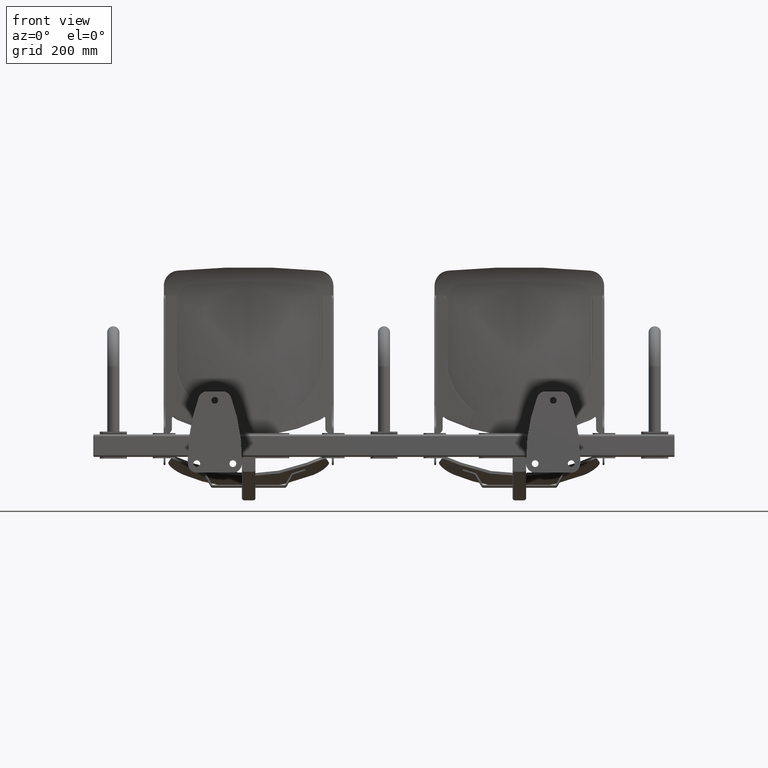
[diagram: clean part render]
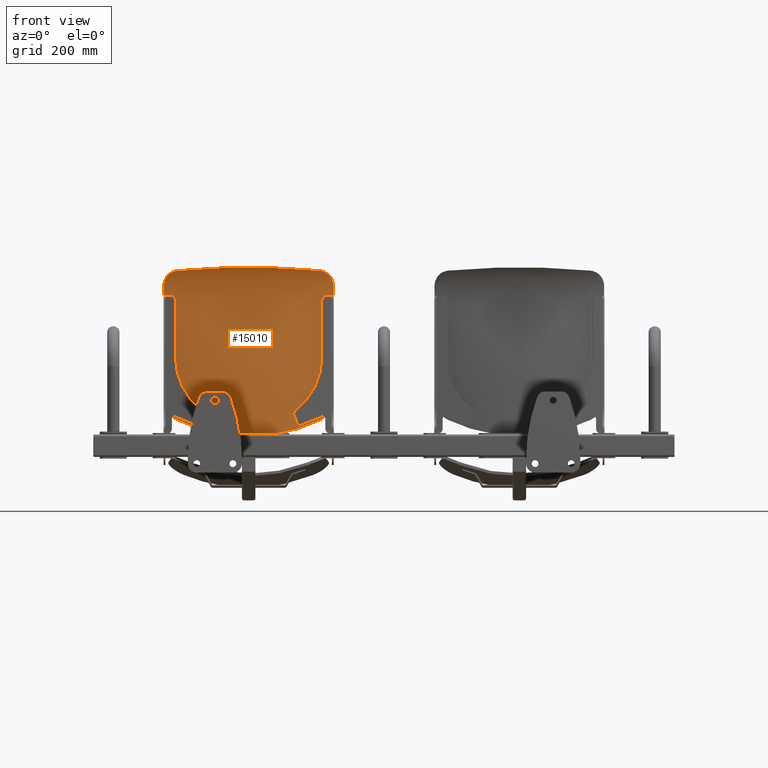
[diagram: same view with one face highlighted and labeled with its STEP entity id]
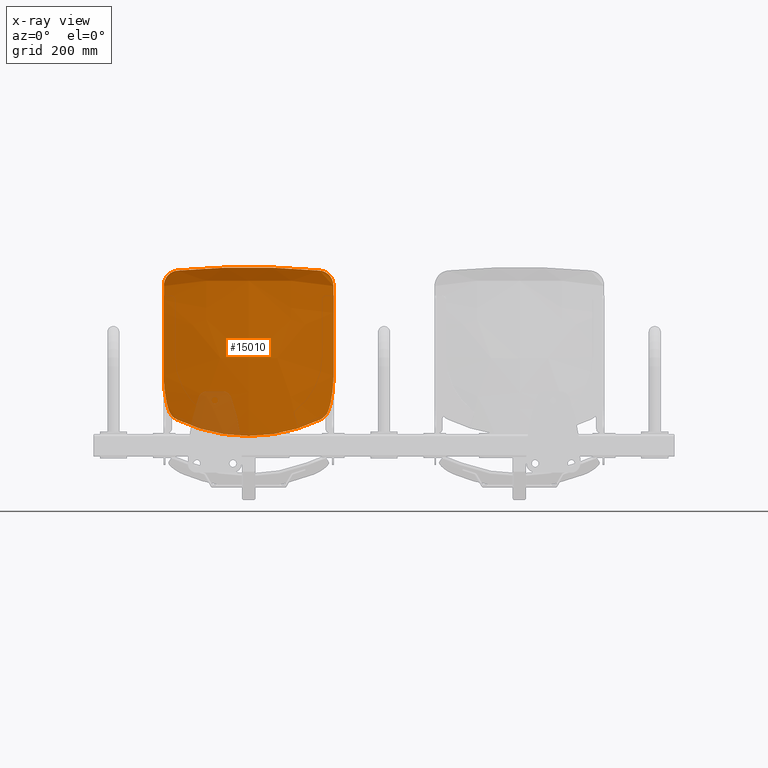
[diagram: x-ray of the same camera — body ghosted, the highlighted face saturated]
A machine part, front view. The second image highlights one B-rep face of the part: STEP entity #15010.
The next image is the same camera in x-ray: the body ghosted, the highlighted face saturated — about 6% of this face is hidden behind the body in this view.
In plain terms, the highlighted face is a freeform B-spline surface patch.
Its self-contained STEP definition (entity closure, byte-faithful):
#234 = EDGE_LOOP ( 'NONE', ( #11351, #11354, #11355, #11352, #11353, #11344, #11345, #11348, #11349, #11346, #11347, #11338, #11339, #11342, #11343, #11340, #11341, #11332, #11333, #11336, #11337, #11334, #11335, #11326 ) ) ;
#316 = CARTESIAN_POINT ( 'NONE',  ( 188.0002311657103500, -1.073385786359298800, 41.69001669799595100 ) ) ;
#338 = CARTESIAN_POINT ( 'NONE',  ( -187.8563218026024500, -0.0002953768531733703600, 249.8295049315200100 ) ) ;
#339 = CARTESIAN_POINT ( 'NONE',  ( -157.5625035321428400, -18.72199756527097100, 7.457756213524751500 ) ) ;
#345 = CARTESIAN_POINT ( 'NONE',  ( 2.382764116475699000E-011, -22.00000000000002100, 373.9999999999998900 ) ) ;
#381 = CARTESIAN_POINT ( 'NONE',  ( -177.8472204401220400, 0.0001370729932983181300, 315.1059132242442000 ) ) ;
#401 = CARTESIAN_POINT ( 'NONE',  ( 187.9999993862942600, 0.0001307344555900622300, 99.99602941533406400 ) ) ;
#403 = CARTESIAN_POINT ( 'NONE',  ( 182.0028732582690900, -6.420261101590939700E-005, 299.9859136392646500 ) ) ;
#425 = VERTEX_POINT ( 'NONE', #316 ) ;
#447 = VERTEX_POINT ( 'NONE', #338 ) ;
#448 = VERTEX_POINT ( 'NONE', #339 ) ;
#454 = VERTEX_POINT ( 'NONE', #345 ) ;
#516 = VERTEX_POINT ( 'NONE', #381 ) ;
#559 = VERTEX_POINT ( 'NONE', #401 ) ;
#563 = VERTEX_POINT ( 'NONE', #403 ) ;
#674 = VERTEX_POINT ( 'NONE', #13684 ) ;
#676 = VERTEX_POINT ( 'NONE', #13686 ) ;
#680 = VERTEX_POINT ( 'NONE', #13690 ) ;
#1225 = EDGE_CURVE ( 'NONE', #7734, #7731, #14094, .T. ) ;
#5702 = CARTESIAN_POINT ( 'NONE',  ( -187.9606046966044300, 0.1179701345371578800, 166.6950656131827200 ) ) ;
#5703 = CARTESIAN_POINT ( 'NONE',  ( -188.0000112297362000, -3.361936279219827900E-005, 149.9952416192824100 ) ) ;
#5704 = CARTESIAN_POINT ( 'NONE',  ( -188.0000111042557800, -6.752819438246039900E-005, 149.9928625333073700 ) ) ;
#5792 = CARTESIAN_POINT ( 'NONE',  ( -188.0022870628923200, -0.6496528624199394700, 44.33293525947956900 ) ) ;
#5794 = CARTESIAN_POINT ( 'NONE',  ( -188.0024722731948500, -0.2939506153449409400, 47.15831624106059600 ) ) ;
#5800 = CARTESIAN_POINT ( 'NONE',  ( -188.0012035646784600, -1.083772762154606900, 41.68685205327145100 ) ) ;
#5802 = CARTESIAN_POINT ( 'NONE',  ( -188.0024225126177800, 0.2710497398211061900, 53.07993217866837900 ) ) ;
#5804 = CARTESIAN_POINT ( 'NONE',  ( -188.0021820371105200, 0.4805861891276436700, 56.17533090148489100 ) ) ;
#5806 = CARTESIAN_POINT ( 'NONE',  ( -188.0014612997415200, 0.7510332483496156000, 62.63056684434933900 ) ) ;
#5807 = CARTESIAN_POINT ( 'NONE',  ( -188.0009825776939200, 0.8112463409076793300, 65.99114990217165700 ) ) ;
#5808 = CARTESIAN_POINT ( 'NONE',  ( -188.0003986706767000, 0.8035839978772276700, 71.23478564972887700 ) ) ;
#5810 = CARTESIAN_POINT ( 'NONE',  ( -188.0002281826668600, 0.7849107386901372800, 73.01650368887985100 ) ) ;
#5812 = CARTESIAN_POINT ( 'NONE',  ( -188.0000656917602800, 0.7366653401510950800, 75.74071747489547600 ) ) ;
#5814 = CARTESIAN_POINT ( 'NONE',  ( -188.0000272054003300, 0.7172269422441393000, 76.65739834832338300 ) ) ;
#5815 = CARTESIAN_POINT ( 'NONE',  ( -188.0000057204466100, 0.6892700364291132200, 77.81413039222709900 ) ) ;
#5817 = CARTESIAN_POINT ( 'NONE',  ( -188.0000012761539900, 0.6806090625132726900, 78.16196618944738400 ) ) ;
#5818 = CARTESIAN_POINT ( 'NONE',  ( -188.0000000448795300, 0.6715539034214228500, 78.51102995050034400 ) ) ;
#5820 = CARTESIAN_POINT ( 'NONE',  ( -187.9999999931316900, 0.6677273716807794500, 78.65664399999160100 ) ) ;
#5822 = CARTESIAN_POINT ( 'NONE',  ( -187.9999999984771100, 0.6675670310196454300, 78.66270594968850100 ) ) ;
#5823 = CARTESIAN_POINT ( 'NONE',  ( -187.9999999799213400, 0.6669472572298902300, 78.68621841428729600 ) ) ;
#5825 = CARTESIAN_POINT ( 'NONE',  ( -187.9999999341682700, 0.6660162665476973000, 78.72150048459315000 ) ) ;
#5827 = CARTESIAN_POINT ( 'NONE',  ( -187.9999993048911600, 0.6600947469894459200, 78.94520769805137700 ) ) ;
#5828 = CARTESIAN_POINT ( 'NONE',  ( -187.9999967887187300, 0.6543415771614474700, 79.15858527255709000 ) ) ;
#5830 = CARTESIAN_POINT ( 'NONE',  ( -187.9999341437994900, 0.5655096646645398900, 82.40236736897964000 ) ) ;
#5832 = CARTESIAN_POINT ( 'NONE',  ( -187.9994800347202200, 0.4509624061081551300, 85.74714622946841300 ) ) ;
#5833 = CARTESIAN_POINT ( 'NONE',  ( -187.9986517321492300, 0.2033617786276169200, 93.03012430046702300 ) ) ;
#5835 = CARTESIAN_POINT ( 'NONE',  ( -187.9982983954857600, 0.06993764059986619400, 96.96826173512263800 ) ) ;
#5837 = CARTESIAN_POINT ( 'NONE',  ( -187.9988404034299700, -0.05842154600952731400, 103.3383474381389800 ) ) ;
#5838 = CARTESIAN_POINT ( 'NONE',  ( -187.9991746908248700, -0.08968672453634464500, 105.5387575123954100 ) ) ;
#5866 = CARTESIAN_POINT ( 'NONE',  ( -13.70315709107879700, -22.00000000000048700, 374.0000000000008000 ) ) ;
#5867 = CARTESIAN_POINT ( 'NONE',  ( 2.382764116475699000E-011, -22.00000000000002100, 373.9999999999998900 ) ) ;
#5885 = CARTESIAN_POINT ( 'NONE',  ( -27.40251786173711300, -21.59829927750289600, 373.2401518862376400 ) ) ;
#5886 = CARTESIAN_POINT ( 'NONE',  ( -44.52189235742344700, -20.58556990604395100, 371.3242526558273700 ) ) ;
#5887 = CARTESIAN_POINT ( 'NONE',  ( -47.94552520619085800, -20.35741036279801000, 370.8926263182673300 ) ) ;
#5888 = CARTESIAN_POINT ( 'NONE',  ( -54.79230194183628600, -19.84938349206075300, 369.9314897528215100 ) ) ;
#5889 = CARTESIAN_POINT ( 'NONE',  ( -58.21688396920650600, -19.56938746362891000, 369.4017358264065900 ) ) ;
#5890 = CARTESIAN_POINT ( 'NONE',  ( -68.48099206413499500, -18.65178511681628100, 367.6652941120098000 ) ) ;
#5891 = CARTESIAN_POINT ( 'NONE',  ( -75.24413141044867400, -17.94262275974374900, 366.3230389061914100 ) ) ;
#5892 = CARTESIAN_POINT ( 'NONE',  ( -88.61714266929965300, -16.33821413107779100, 363.2822731389149500 ) ) ;
#5893 = CARTESIAN_POINT ( 'NONE',  ( -95.22698482956971600, -15.44280821914198200, 361.5837553788750800 ) ) ;
#5894 = CARTESIAN_POINT ( 'NONE',  ( -108.2982282557873200, -13.47659193804672400, 357.8392658229013800 ) ) ;
#5895 = CARTESIAN_POINT ( 'NONE',  ( -114.7595952493859400, -12.40555965449097200, 355.7933048063818500 ) ) ;
#5896 = CARTESIAN_POINT ( 'NONE',  ( -127.5385371952948900, -10.10605476084715300, 351.3585547668217300 ) ) ;
#5897 = CARTESIAN_POINT ( 'NONE',  ( -133.8560606569915000, -8.877202496894286200, 348.9698051385364600 ) ) ;
#5898 = CARTESIAN_POINT ( 'NONE',  ( -146.3530371576146600, -6.296030642479378200, 343.8492205666926800 ) ) ;
#5899 = CARTESIAN_POINT ( 'NONE',  ( -152.5324352537462900, -4.943244926504678300, 341.1174582662262700 ) ) ;
#5900 = CARTESIAN_POINT ( 'NONE',  ( -158.6470069993034700, -3.560112624779366200, 338.2107555783606500 ) ) ;
#7568 = B_SPLINE_SURFACE_WITH_KNOTS ( 'NONE', 3, 3, ( 
 ( #19964, #19972, #19973, #19974, #19975, #19976, #19977, #19978, #19979, #19980, #19981, #19982, #19983 ),
 ( #19984, #19985, #19986, #19987, #19988, #19989, #19990, #19991, #19992, #19993, #19994, #19995, #19996 ),
 ( #19997, #19998, #19999, #20000, #20001, #20002, #20003, #20004, #20005, #20006, #20007, #20008, #20009 ),
 ( #20010, #20011, #20012, #20013, #20014, #20015, #20016, #20017, #20018, #20019, #20020, #20021, #20022 ),
 ( #20023, #20024, #20025, #20026, #20027, #20028, #20029, #20030, #20031, #20032, #20033, #20034, #20035 ),
 ( #20036, #20037, #20038, #20039, #20040, #20041, #20042, #20043, #20044, #20045, #20046, #20047, #20048 ),
 ( #20049, #20050, #20051, #20052, #20053, #20054, #20055, #20056, #20057, #20058, #20059, #20060, #20061 ),
 ( #20062, #20063, #20064, #20065, #20066, #20067, #20068, #20069, #20070, #20071, #20072, #20073, #20074 ),
 ( #20075, #20076, #20077, #20078, #20079, #20080, #20081, #20082, #20083, #20084, #20085, #20086, #20087 ),
 ( #20088, #20089, #20090, #20091, #20092, #20093, #20094, #20095, #20096, #20097, #20098, #20099, #20100 ),
 ( #20101, #20102, #20103, #20104, #20105, #20106, #20107, #20108, #20109, #20110, #20111, #20112, #20113 ),
 ( #20114, #20115, #20116, #20117, #20118, #20119, #20120, #20121, #20122, #20123, #20124, #20125, #20126 ),
 ( #20127, #20128, #20129, #20130, #20131, #20132, #20133, #20134, #20135, #20136, #20137, #20138, #20139 ),
 ( #20140, #20141, #20142, #20143, #20144, #20145, #20146, #20147, #20148, #20149, #20150, #20151, #20152 ),
 ( #20153, #20154, #20155, #20156, #20157, #20158, #20159, #20160, #20161, #20162, #20163, #20164, #20165 ) ),
 .UNSPECIFIED., .F., .F., .F.,
 ( 4, 3, 1, 1, 1, 2, 1, 1, 1, 4 ),
 ( 4, 1, 1, 1, 1, 1, 1, 1, 1, 1, 4 ),
 ( -0.01000000000000000000, 0.0000000000000000000, 0.1250000000000000300, 0.2500000000000000600, 0.3750000000000001100, 0.5000000000000001100, 0.6250000000000001100, 0.7500000000000000000, 0.8750000000000000000, 1.000000000000000000 ),
 ( 0.0000000000000000000, 0.1147218755964356400, 0.1948007983974813000, 0.2606139848572682200, 0.3264298036242167000, 0.4581111813546794300, 0.5901538615926241700, 0.7220127297153236000, 0.8538715978388121700, 0.9065204622699966100, 1.000000000000000000 ),
 .UNSPECIFIED. ) ;
#7695 = VERTEX_POINT ( 'NONE', #16343 ) ;
#7727 = VERTEX_POINT ( 'NONE', #16375 ) ;
#7731 = VERTEX_POINT ( 'NONE', #16379 ) ;
#7733 = VERTEX_POINT ( 'NONE', #16381 ) ;
#7734 = VERTEX_POINT ( 'NONE', #16382 ) ;
#7735 = VERTEX_POINT ( 'NONE', #16383 ) ;
#7741 = VERTEX_POINT ( 'NONE', #16389 ) ;
#7756 = VERTEX_POINT ( 'NONE', #16404 ) ;
#7880 = VERTEX_POINT ( 'NONE', #16520 ) ;
#7882 = VERTEX_POINT ( 'NONE', #16522 ) ;
#7883 = VERTEX_POINT ( 'NONE', #16523 ) ;
#10198 = CARTESIAN_POINT ( 'NONE',  ( 158.6470069993035000, -3.560112624779372000, 338.2107555783605300 ) ) ;
#11326 = ORIENTED_EDGE ( 'NONE', *, *, #11655, .T. ) ;
#11332 = ORIENTED_EDGE ( 'NONE', *, *, #11652, .T. ) ;
#11333 = ORIENTED_EDGE ( 'NONE', *, *, #11755, .T. ) ;
#11334 = ORIENTED_EDGE ( 'NONE', *, *, #11756, .T. ) ;
#11335 = ORIENTED_EDGE ( 'NONE', *, *, #1225, .F. ) ;
#11336 = ORIENTED_EDGE ( 'NONE', *, *, #11653, .T. ) ;
#11337 = ORIENTED_EDGE ( 'NONE', *, *, #11654, .T. ) ;
#11338 = ORIENTED_EDGE ( 'NONE', *, *, #11648, .T. ) ;
#11339 = ORIENTED_EDGE ( 'NONE', *, *, #11649, .T. ) ;
#11340 = ORIENTED_EDGE ( 'NONE', *, *, #11628, .T. ) ;
#11341 = ORIENTED_EDGE ( 'NONE', *, *, #11651, .T. ) ;
#11342 = ORIENTED_EDGE ( 'NONE', *, *, #11797, .T. ) ;
#11343 = ORIENTED_EDGE ( 'NONE', *, *, #11650, .T. ) ;
#11344 = ORIENTED_EDGE ( 'NONE', *, *, #11644, .T. ) ;
#11345 = ORIENTED_EDGE ( 'NONE', *, *, #11645, .T. ) ;
#11346 = ORIENTED_EDGE ( 'NONE', *, *, #11647, .T. ) ;
#11347 = ORIENTED_EDGE ( 'NONE', *, *, #11634, .T. ) ;
#11348 = ORIENTED_EDGE ( 'NONE', *, *, #11636, .T. ) ;
#11349 = ORIENTED_EDGE ( 'NONE', *, *, #11646, .T. ) ;
#11351 = ORIENTED_EDGE ( 'NONE', *, *, #11641, .T. ) ;
#11352 = ORIENTED_EDGE ( 'NONE', *, *, #11643, .T. ) ;
#11353 = ORIENTED_EDGE ( 'NONE', *, *, #11639, .T. ) ;
#11354 = ORIENTED_EDGE ( 'NONE', *, *, #11642, .T. ) ;
#11355 = ORIENTED_EDGE ( 'NONE', *, *, #11630, .T. ) ;
#11628 = EDGE_CURVE ( 'NONE', #516, #7883, #14079, .T. ) ;
#11630 = EDGE_CURVE ( 'NONE', #425, #559, #14099, .T. ) ;
#11634 = EDGE_CURVE ( 'NONE', #563, #7882, #13085, .T. ) ;
#11636 = EDGE_CURVE ( 'NONE', #7741, #12201, #13071, .T. ) ;
#11639 = EDGE_CURVE ( 'NONE', #7735, #676, #13083, .T. ) ;
#11641 = EDGE_CURVE ( 'NONE', #448, #680, #13059, .T. ) ;
#11642 = EDGE_CURVE ( 'NONE', #680, #425, #13239, .T. ) ;
#11643 = EDGE_CURVE ( 'NONE', #559, #7735, #13131, .T. ) ;
#11644 = EDGE_CURVE ( 'NONE', #676, #674, #13103, .T. ) ;
#11645 = EDGE_CURVE ( 'NONE', #674, #7741, #13160, .T. ) ;
#11646 = EDGE_CURVE ( 'NONE', #12201, #12199, #13165, .T. ) ;
#11647 = EDGE_CURVE ( 'NONE', #12199, #563, #13108, .T. ) ;
#11648 = EDGE_CURVE ( 'NONE', #7882, #20411, #13104, .T. ) ;
#11649 = EDGE_CURVE ( 'NONE', #20411, #454, #13126, .T. ) ;
#11650 = EDGE_CURVE ( 'NONE', #7756, #516, #13185, .T. ) ;
#11651 = EDGE_CURVE ( 'NONE', #7883, #7880, #13286, .T. ) ;
#11652 = EDGE_CURVE ( 'NONE', #7880, #7733, #13096, .T. ) ;
#11653 = EDGE_CURVE ( 'NONE', #447, #7695, #13081, .T. ) ;
#11654 = EDGE_CURVE ( 'NONE', #7695, #7727, #13075, .T. ) ;
#11655 = EDGE_CURVE ( 'NONE', #7734, #448, #13073, .T. ) ;
#11755 = EDGE_CURVE ( 'NONE', #7733, #447, #13079, .T. ) ;
#11756 = EDGE_CURVE ( 'NONE', #7727, #7731, #13317, .T. ) ;
#11797 = EDGE_CURVE ( 'NONE', #454, #7756, #13378, .T. ) ;
#12199 = VERTEX_POINT ( 'NONE', #17699 ) ;
#12201 = VERTEX_POINT ( 'NONE', #17697 ) ;
#13059 = B_SPLINE_CURVE_WITH_KNOTS ( 'NONE', 3,
 ( #17101, #17100, #17110, #17111, #17112, #17113, #17114, #17115, #17116, #17117, #17118, #17119, #17120, #17121, #17122, #17123, #17124, #17125, #17126, #17127, #17128, #17129 ),
 .UNSPECIFIED., .F., .F.,
 ( 4, 2, 2, 2, 2, 2, 2, 2, 2, 2, 4 ),
 ( 0.03079469900314655100, 0.07027660330751274400, 0.1097585076118789400, 0.1492404119162451000, 0.1689813640684281700, 0.1887223162206112500, 0.2282042205249774400, 0.2676861248293435600, 0.2874270769815267000, 0.3071680291337097700, 0.3466499334380759300 ),
 .UNSPECIFIED. ) ;
#13071 = B_SPLINE_CURVE_WITH_KNOTS ( 'NONE', 3,
 ( #17062, #17063, #17078, #17079, #17080 ),
 .UNSPECIFIED., .F., .F.,
 ( 4, 1, 4 ),
 ( 0.6731215835413418800, 0.6735701963757831900, 0.7390416898494063200 ),
 .UNSPECIFIED. ) ;
#13073 = B_SPLINE_CURVE_WITH_KNOTS ( 'NONE', 3,
 ( #15839, #15838, #15844, #15845, #15846, #15847, #15848, #15849, #15850, #15851, #15852, #15853, #15854, #15855, #15856, #15857, #15858, #15859, #15860, #15861, #15862, #15863, #15864, #15865, #15866, #15867 ),
 .UNSPECIFIED., .F., .F.,
 ( 4, 2, 2, 2, 2, 2, 2, 2, 2, 2, 2, 2, 4 ),
 ( 0.0000000000000000000, 0.006654779715465479000, 0.009982169573198211900, 0.01330955943093095300, 0.01996433914639642700, 0.02329172900412918400, 0.02661911886186194400, 0.03327389857732741100, 0.03493759350619379800, 0.03660128843506019200, 0.03992867829279303500, 0.04658345800825865200, 0.05323823772372426900 ),
 .UNSPECIFIED. ) ;
#13075 = B_SPLINE_CURVE_WITH_KNOTS ( 'NONE', 3,
 ( #15835, #15834, #15840, #15841 ),
 .UNSPECIFIED., .F., .F.,
 ( 4, 4 ),
 ( 0.0000000000000000000, 0.04057401022478195800 ),
 .UNSPECIFIED. ) ;
#13079 = B_SPLINE_CURVE_WITH_KNOTS ( 'NONE', 3,
 ( #16254, #16253, #16259, #16260, #16261 ),
 .UNSPECIFIED., .F., .F.,
 ( 4, 1, 4 ),
 ( 0.2609583101506876600, 0.3264298036242167000, 0.3268784142531473400 ),
 .UNSPECIFIED. ) ;
#13081 = B_SPLINE_CURVE_WITH_KNOTS ( 'NONE', 3,
 ( #15831, #15830, #15836, #15837 ),
 .UNSPECIFIED., .F., .F.,
 ( 4, 4 ),
 ( 0.0001705772843669340700, 0.009427266619147806100 ),
 .UNSPECIFIED. ) ;
#13083 = B_SPLINE_CURVE_WITH_KNOTS ( 'NONE', 3,
 ( #17086, #17085, #17097, #17098, #17099 ),
 .UNSPECIFIED., .F., .F.,
 ( 4, 1, 4 ),
 ( 0.4098273238912484900, 0.4098461384073759900, 0.5418886412939554200 ),
 .UNSPECIFIED. ) ;
#13085 = B_SPLINE_CURVE_WITH_KNOTS ( 'NONE', 3,
 ( #17046, #17045, #17060, #17061 ),
 .UNSPECIFIED., .F., .F.,
 ( 4, 4 ),
 ( 0.8051992016779040400, 0.8449645817332793700 ),
 .UNSPECIFIED. ) ;
#13096 = B_SPLINE_CURVE_WITH_KNOTS ( 'NONE', 3,
 ( #15827, #15826, #15832, #15833 ),
 .UNSPECIFIED., .F., .F.,
 ( 4, 4 ),
 ( 0.2606139843371838600, 0.2609583101506876600 ),
 .UNSPECIFIED. ) ;
#13103 = B_SPLINE_CURVE_WITH_KNOTS ( 'NONE', 3,
 ( #15749, #15748, #15756, #15757 ),
 .UNSPECIFIED., .F., .F.,
 ( 4, 4 ),
 ( 0.0000000000000000000, 0.04057401022467249000 ),
 .UNSPECIFIED. ) ;
#13104 = B_SPLINE_CURVE_WITH_KNOTS ( 'NONE', 3,
 ( #15767, #15766, #15772, #15773, #15774, #15775, #15776, #15777, #15778, #15779, #15780, #15781, #15782, #15783, #15784, #15785, #15786, #15787 ),
 .UNSPECIFIED., .F., .F.,
 ( 4, 2, 2, 2, 2, 2, 2, 2, 4 ),
 ( 0.0000000000000000000, 0.007757990828395534700, 0.01163698624259330300, 0.01357648394969211700, 0.01551598165679093100, 0.02327397248518590600, 0.02521347019228468600, 0.02715296789938346400, 0.03103196331358108400 ),
 .UNSPECIFIED. ) ;
#13108 = B_SPLINE_CURVE_WITH_KNOTS ( 'NONE', 3,
 ( #15762, #15763, #15768, #15769 ),
 .UNSPECIFIED., .F., .F.,
 ( 4, 4 ),
 ( 0.03445279691215157700, 0.05969954567152369700 ),
 .UNSPECIFIED. ) ;
#13126 = B_SPLINE_CURVE_WITH_KNOTS ( 'NONE', 3,
 ( #15770, #15771, #15790, #15791, #15792, #15793, #15794, #15795, #15796, #15797, #15798, #15799, #15800, #15801, #15802, #15803, #15804, #15805, #15806, #15807 ),
 .UNSPECIFIED., .F., .F.,
 ( 4, 2, 2, 2, 2, 2, 2, 2, 2, 4 ),
 ( 0.01747894250387419700, 0.03804815724627905200, 0.05861737198868390000, 0.07918658673108874800, 0.09975580147349361000, 0.1203250162158984400, 0.1254673199014996200, 0.1306096235871008500, 0.1408942309583032200, 0.1820326604431127000 ),
 .UNSPECIFIED. ) ;
#13131 = B_SPLINE_CURVE_WITH_KNOTS ( 'NONE', 3,
 ( #17131, #17130, #15750, #15751, #15752, #15753 ),
 .UNSPECIFIED., .F., .F.,
 ( 4, 2, 4 ),
 ( 0.1065604945434725600, 0.1317286419521295800, 0.1568967893607865800 ),
 .UNSPECIFIED. ) ;
#13160 = B_SPLINE_CURVE_WITH_KNOTS ( 'NONE', 3,
 ( #15755, #15754, #15760, #15761 ),
 .UNSPECIFIED., .F., .F.,
 ( 4, 4 ),
 ( 0.0000000000000000000, 0.009223176487255060500 ),
 .UNSPECIFIED. ) ;
#13165 = B_SPLINE_CURVE_WITH_KNOTS ( 'NONE', 3,
 ( #15759, #15758, #15764, #15765 ),
 .UNSPECIFIED., .F., .F.,
 ( 4, 4 ),
 ( 0.7390416898494063200, 0.7393860156629057400 ),
 .UNSPECIFIED. ) ;
#13185 = B_SPLINE_CURVE_WITH_KNOTS ( 'NONE', 3,
 ( #15789, #15788, #15810, #15811, #15812, #15813, #15814, #15815, #15816, #15817, #15818, #15819, #15820, #15821, #15822, #15823, #15824, #15825 ),
 .UNSPECIFIED., .F., .F.,
 ( 4, 2, 2, 2, 2, 2, 2, 2, 4 ),
 ( 0.0000000000000000000, 0.007756980139294334000, 0.01163547020894155000, 0.01357471524376515800, 0.01551396027858876700, 0.02327094041788309700, 0.02521018545270674300, 0.02714943048753038600, 0.03102792055717767900 ),
 .UNSPECIFIED. ) ;
#13239 = B_SPLINE_CURVE_WITH_KNOTS ( 'NONE', 3,
 ( #17109, #17108, #17132, #17133, #17134, #17135, #17136, #17137, #17138, #17139, #17140, #17141, #17142, #17143, #17144, #17145, #17146, #17147, #17148, #17149, #17150, #17151, #15740, #15741, #15742, #15743, #15744, #15745, #15746, #15747 ),
 .UNSPECIFIED., .F., .F.,
 ( 4, 2, 2, 2, 2, 2, 2, 2, 2, 2, 2, 2, 2, 2, 4 ),
 ( 0.0000000000000000000, 0.006655776765280109600, 0.009983665147920161400, 0.01164760933924015100, 0.01331155353056014300, 0.01996733029584004200, 0.02163127448716000200, 0.02329521867847996300, 0.02662310706111983100, 0.02995099544375970400, 0.03161493963507963600, 0.03327888382639956200, 0.03993466059167928600, 0.04659043735695900200, 0.05324621412223872600 ),
 .UNSPECIFIED. ) ;
#13286 = B_SPLINE_CURVE_WITH_KNOTS ( 'NONE', 3,
 ( #15809, #15808, #15828, #15829 ),
 .UNSPECIFIED., .F., .F.,
 ( 4, 4 ),
 ( 0.03142580853323429000, 0.05667964773468131500 ),
 .UNSPECIFIED. ) ;
#13317 = B_SPLINE_CURVE_WITH_KNOTS ( 'NONE', 3,
 ( #16258, #16257, #5702, #5703, #5704 ),
 .UNSPECIFIED., .F., .F.,
 ( 4, 1, 4 ),
 ( 0.4581113582125830300, 0.5901538615926242800, 0.5901726761091143900 ),
 .UNSPECIFIED. ) ;
#13378 = B_SPLINE_CURVE_WITH_KNOTS ( 'NONE', 3,
 ( #5867, #5866, #5885, #5886, #5887, #5888, #5889, #5890, #5891, #5892, #5893, #5894, #5895, #5896, #5897, #5898, #5899, #5900 ),
 .UNSPECIFIED., .F., .F.,
 ( 4, 2, 2, 2, 2, 2, 2, 2, 4 ),
 ( 0.1820326604431127000, 0.2231594277522714300, 0.2334411195795611200, 0.2437228114068508100, 0.2642861950614301400, 0.2848495787160095800, 0.3054129623705889000, 0.3259763460251683400, 0.3465397296797477200 ),
 .UNSPECIFIED. ) ;
#13684 = CARTESIAN_POINT ( 'NONE',  ( 188.0000000000000900, -0.03623408467451350000, 240.5739880507189800 ) ) ;
#13686 = CARTESIAN_POINT ( 'NONE',  ( 188.0001262323120000, 2.540896979221925500E-005, 199.9999623146956900 ) ) ;
#13690 = CARTESIAN_POINT ( 'NONE',  ( 157.5625035321475300, -18.72199756527040600, 7.457756213525041900 ) ) ;
#14013 = CARTESIAN_POINT ( 'NONE',  ( -187.9996250835143300, -0.1191079303156419700, 108.9548556455507400 ) ) ;
#14014 = CARTESIAN_POINT ( 'NONE',  ( -187.9997653972410500, -0.1260118634008326200, 110.1127998685110900 ) ) ;
#14015 = CARTESIAN_POINT ( 'NONE',  ( -187.9999129367367100, -0.1320979699823719400, 111.8785464623068900 ) ) ;
#14016 = CARTESIAN_POINT ( 'NONE',  ( -187.9999708295859800, -0.1340748382612677000, 112.7686270274417100 ) ) ;
#14017 = CARTESIAN_POINT ( 'NONE',  ( -187.9999945213204500, -0.1344802531488385700, 113.6695087631856200 ) ) ;
#14018 = CARTESIAN_POINT ( 'NONE',  ( -187.9999997288816500, -0.1344240143816111700, 114.1217488621962800 ) ) ;
#14019 = CARTESIAN_POINT ( 'NONE',  ( -187.9999997920047600, -0.1343568200076483400, 114.2741671134828900 ) ) ;
#14020 = CARTESIAN_POINT ( 'NONE',  ( -188.0000004369439900, -0.1341660641365376200, 114.5680945865391700 ) ) ;
#14021 = CARTESIAN_POINT ( 'NONE',  ( -188.0000014366885400, -0.1340429855618329700, 114.7148085604898000 ) ) ;
#14022 = CARTESIAN_POINT ( 'NONE',  ( -188.0000551760298600, -0.1291019510138494700, 119.5481202832335300 ) ) ;
#14023 = CARTESIAN_POINT ( 'NONE',  ( -188.0006425985037600, -0.09822056830080566600, 123.9787516329435700 ) ) ;
#14024 = CARTESIAN_POINT ( 'NONE',  ( -188.0011152717919700, -0.03784077606399294200, 132.3161530824617700 ) ) ;
#14025 = CARTESIAN_POINT ( 'NONE',  ( -188.0010323784683800, -0.008097778000090382500, 136.2229627741408000 ) ) ;
#14026 = CARTESIAN_POINT ( 'NONE',  ( -188.0004512504168300, 0.02121331922908495000, 143.5062798044310200 ) ) ;
#14027 = CARTESIAN_POINT ( 'NONE',  ( -188.0000000000001700, 0.02106111504174457100, 146.8828438574750000 ) ) ;
#14028 = CARTESIAN_POINT ( 'NONE',  ( -188.0000111042557800, -6.752819438246039900E-005, 149.9928625333073700 ) ) ;
#14079 = B_SPLINE_CURVE_WITH_KNOTS ( 'NONE', 3,
 ( #16916, #16915, #16931, #16932, #16933 ),
 .UNSPECIFIED., .F., .F.,
 ( 4, 1, 4 ),
 ( 0.1550354182667220100, 0.1948007983974826300, 0.1948743837161259500 ),
 .UNSPECIFIED. ) ;
#14094 = B_SPLINE_CURVE_WITH_KNOTS ( 'NONE', 3,
 ( #5800, #5792, #5794, #5802, #5804, #5806, #5807, #5808, #5810, #5812, #5814, #5815, #5817, #5818, #5820, #5822, #5823, #5825, #5827, #5828, #5830, #5832, #5833, #5835, #5837, #5838, #14013, #14014, #14015, #14016, #14017, #14018, #14019, #14020, #14021, #14022, #14023, #14024, #14025, #14026, #14027, #14028 ),
 .UNSPECIFIED., .F., .F.,
 ( 4, 2, 2, 2, 2, 2, 1, 2, 2, 1, 1, 2, 2, 2, 2, 2, 1, 2, 2, 2, 2, 2, 4 ),
 ( 0.3418074902021571200, 0.3829445220645491000, 0.4240815539269411300, 0.4652185857893331700, 0.4857871017205291900, 0.4960713596861270900, 0.4986424241775266300, 0.4999279564232263500, 0.5002493394846512200, 0.5005707225460760400, 0.5012134886689253400, 0.5063556176517195500, 0.5886296813764296800, 0.6709037451011399300, 0.7120407769634949900, 0.7326092928946724700, 0.7428935508602612100, 0.7480356798430554100, 0.7506067443344528500, 0.7531778088258500600, 0.8354518725505669700, 0.9177259362752836500, 1.000000000000000000 ),
 .UNSPECIFIED. ) ;
#14099 = B_SPLINE_CURVE_WITH_KNOTS ( 'NONE', 3,
 ( #16934, #16935, #16949, #16950, #16951, #16952, #16953, #16954, #16955, #16956, #16957, #16958, #16959, #16960, #16961, #16962, #16963, #16964, #16965, #16966, #16967, #16968, #16969, #16970, #16971, #16972, #16973, #16974, #16975, #16976, #16977, #16978, #16979, #16980, #16981, #16982, #16983, #16984, #16985, #16986, #16987, #16988, #16989 ),
 .UNSPECIFIED., .F., .F.,
 ( 4, 2, 2, 2, 1, 1, 1, 2, 2, 1, 2, 2, 2, 2, 2, 1, 1, 1, 2, 2, 1, 1, 2, 2, 2, 4 ),
 ( 0.3633871575399147400, 0.4429637628474331100, 0.5225403681549514200, 0.5623286708087106300, 0.5673022086404305700, 0.5697889775562904300, 0.5710323620142204700, 0.5713432081287029800, 0.5716540542431856100, 0.5722757464721508500, 0.5822228221355955100, 0.6021169734624844900, 0.6816935787700405500, 0.7612701840775966100, 0.7811643354044857100, 0.7836511043203473500, 0.7848944887782780500, 0.7855161810072433000, 0.7856716040644844400, 0.7858270271217255900, 0.7861378732362082100, 0.7911114110679244900, 0.8010584867313563800, 0.8408467893850850600, 0.9204233946925424200, 1.000000000000000000 ),
 .UNSPECIFIED. ) ;
#14159 = FACE_OUTER_BOUND ( 'NONE', #234, .T. ) ;
#15010 = ADVANCED_FACE ( 'NONE', ( #14159 ), #7568, .T. ) ;
#15740 = CARTESIAN_POINT ( 'NONE',  ( 182.7661238311539200, -7.285302578402109000, 23.03330337200095100 ) ) ;
#15741 = CARTESIAN_POINT ( 'NONE',  ( 184.0783486325344100, -6.130669662199633900, 25.23055207670891400 ) ) ;
#15742 = CARTESIAN_POINT ( 'NONE',  ( 184.9666487026640900, -5.269522381604768500, 27.07450506652764600 ) ) ;
#15743 = CARTESIAN_POINT ( 'NONE',  ( 186.4301569099309300, -3.734436180570053200, 30.95547434253398200 ) ) ;
#15744 = CARTESIAN_POINT ( 'NONE',  ( 187.0061336800313800, -3.065310339011132700, 32.99479490359028900 ) ) ;
#15745 = CARTESIAN_POINT ( 'NONE',  ( 187.7971235487491400, -1.913948127128477700, 37.28179615551886900 ) ) ;
#15746 = CARTESIAN_POINT ( 'NONE',  ( 188.0003516124331500, -1.447318598270733900, 39.46654782810643500 ) ) ;
#15747 = CARTESIAN_POINT ( 'NONE',  ( 188.0002311657103500, -1.073385786359298800, 41.69001669799595100 ) ) ;
#15748 = CARTESIAN_POINT ( 'NONE',  ( 187.9999999734994800, -0.05075890697190199600, 213.5246241435903600 ) ) ;
#15749 = CARTESIAN_POINT ( 'NONE',  ( 188.0001262323120000, 2.540896979221925500E-005, 199.9999623146956900 ) ) ;
#15750 = CARTESIAN_POINT ( 'NONE',  ( 188.0000000000001100, -0.2516117597395605100, 116.6632833052488700 ) ) ;
#15751 = CARTESIAN_POINT ( 'NONE',  ( 188.0000000000000900, -0.1720962349043269300, 133.3283749528548600 ) ) ;
#15752 = CARTESIAN_POINT ( 'NONE',  ( 188.0000000000002300, -0.06231601469329992700, 141.6604635386970600 ) ) ;
#15753 = CARTESIAN_POINT ( 'NONE',  ( 188.0000055521279000, -6.042561700549464800E-005, 149.9928624707747500 ) ) ;
#15754 = CARTESIAN_POINT ( 'NONE',  ( 187.9999999999999700, -0.02029027281043792000, 243.6640016726323700 ) ) ;
#15755 = CARTESIAN_POINT ( 'NONE',  ( 188.0000000000000900, -0.03623408467451350000, 240.5739880507189800 ) ) ;
#15756 = CARTESIAN_POINT ( 'NONE',  ( 188.0000000000001100, -0.1060188497899231900, 227.0492502623518200 ) ) ;
#15757 = CARTESIAN_POINT ( 'NONE',  ( 188.0000000000000900, -0.03623408467451350000, 240.5739880507189800 ) ) ;
#15758 = CARTESIAN_POINT ( 'NONE',  ( 186.0091855026281600, 7.993475408453416300E-006, 274.9128097015121200 ) ) ;
#15759 = CARTESIAN_POINT ( 'NONE',  ( 186.0148617918831100, 0.0001889755163675522900, 274.8693296845450500 ) ) ;
#15760 = CARTESIAN_POINT ( 'NONE',  ( 187.9518355862728100, -0.008841356347464843200, 246.7491550724903100 ) ) ;
#15761 = CARTESIAN_POINT ( 'NONE',  ( 187.8563218329319100, -0.0002953781440819693900, 249.8295040933976200 ) ) ;
#15762 = CARTESIAN_POINT ( 'NONE',  ( 186.0003693703419300, 4.691400543098348600E-006, 275.0000391426918900 ) ) ;
#15763 = CARTESIAN_POINT ( 'NONE',  ( 185.0253544612993400, -0.02292648427060573600, 283.3599784292289300 ) ) ;
#15764 = CARTESIAN_POINT ( 'NONE',  ( 186.0045962450358300, 3.979005126270365800E-006, 274.9564048359376900 ) ) ;
#15765 = CARTESIAN_POINT ( 'NONE',  ( 186.0003693703419300, 4.691400543098348600E-006, 275.0000391426918900 ) ) ;
#15766 = CARTESIAN_POINT ( 'NONE',  ( 177.1265100009938500, 0.0001259283113810553300, 317.6277449891207400 ) ) ;
#15767 = CARTESIAN_POINT ( 'NONE',  ( 177.8472204401215900, 0.0001370729931676992200, 315.1059132242447700 ) ) ;
#15768 = CARTESIAN_POINT ( 'NONE',  ( 183.6956971840429800, -0.07035066771063297500, 291.6841277210692200 ) ) ;
#15769 = CARTESIAN_POINT ( 'NONE',  ( 182.0028732582690900, -6.420261101590939700E-005, 299.9859136392646500 ) ) ;
#15770 = CARTESIAN_POINT ( 'NONE',  ( 158.6470069993035000, -3.560112624779372000, 338.2107555783605300 ) ) ;
#15771 = CARTESIAN_POINT ( 'NONE',  ( 152.5324734449240500, -4.943236287559271200, 341.1174401111688900 ) ) ;
#15772 = CARTESIAN_POINT ( 'NONE',  ( 176.1622044889503200, -0.07511799979098514300, 320.0311632317832400 ) ) ;
#15773 = CARTESIAN_POINT ( 'NONE',  ( 174.3643726901703100, -0.3100797660567460900, 323.4647670722019900 ) ) ;
#15774 = CARTESIAN_POINT ( 'NONE',  ( 173.7059532162751100, -0.4087682282407847900, 324.5804410035040100 ) ) ;
#15775 = CARTESIAN_POINT ( 'NONE',  ( 172.6260769134609300, -0.5886217594675907700, 326.2089336829761800 ) ) ;
#15776 = CARTESIAN_POINT ( 'NONE',  ( 172.2508265455204300, -0.6538781597837554100, 326.7438165734894300 ) ) ;
#15777 = CARTESIAN_POINT ( 'NONE',  ( 171.4786294641355100, -0.7932876984745159700, 327.7853149390788900 ) ) ;
#15778 = CARTESIAN_POINT ( 'NONE',  ( 171.0805913107870700, -0.8676178552860961400, 328.2936266851525000 ) ) ;
#15779 = CARTESIAN_POINT ( 'NONE',  ( 169.0313897778580400, -1.261539231831298600, 330.7738304144229500 ) ) ;
#15780 = CARTESIAN_POINT ( 'NONE',  ( 167.2054163786591800, -1.648313374084769100, 332.5637296562306900 ) ) ;
#15781 = CARTESIAN_POINT ( 'NONE',  ( 164.6781938244232900, -2.204322672031922900, 334.5505305158583300 ) ) ;
#15782 = CARTESIAN_POINT ( 'NONE',  ( 164.1590896877489200, -2.319461473650015600, 334.9360822383196100 ) ) ;
#15783 = CARTESIAN_POINT ( 'NONE',  ( 163.1040706978642400, -2.554790671922298400, 335.6751482735298300 ) ) ;
#15784 = CARTESIAN_POINT ( 'NONE',  ( 162.5678088537974000, -2.675052677838342800, 336.0290577957109100 ) ) ;
#15785 = CARTESIAN_POINT ( 'NONE',  ( 160.9327651527306100, -3.042909245150510400, 337.0441856961114100 ) ) ;
#15786 = CARTESIAN_POINT ( 'NONE',  ( 159.8078015845809700, -3.297537819318710800, 337.6589451030751000 ) ) ;
#15787 = CARTESIAN_POINT ( 'NONE',  ( 158.6470069993035000, -3.560112624779372000, 338.2107555783605300 ) ) ;
#15788 = CARTESIAN_POINT ( 'NONE',  ( -160.9681027844604300, -3.035074618937224900, 337.1073691699159600 ) ) ;
#15789 = CARTESIAN_POINT ( 'NONE',  ( -158.6470069993034700, -3.560112624779366200, 338.2107555783606500 ) ) ;
#15790 = CARTESIAN_POINT ( 'NONE',  ( 146.3538017206377000, -6.295854568327282400, 343.8488588533035700 ) ) ;
#15791 = CARTESIAN_POINT ( 'NONE',  ( 133.8598354048147900, -8.876440998360285700, 348.9683068704360400 ) ) ;
#15792 = CARTESIAN_POINT ( 'NONE',  ( 127.5445954211474100, -10.10487705523404500, 351.3562635471641300 ) ) ;
#15793 = CARTESIAN_POINT ( 'NONE',  ( 114.7719455246103700, -12.40342471888841100, 355.7892073456687300 ) ) ;
#15794 = CARTESIAN_POINT ( 'NONE',  ( 108.3145865702684900, -13.47391658439077300, 357.8341550194513700 ) ) ;
#15795 = CARTESIAN_POINT ( 'NONE',  ( 95.25325192481267300, -15.43907102924948500, 361.5766539939130600 ) ) ;
#15796 = CARTESIAN_POINT ( 'NONE',  ( 88.64931000434128800, -16.33395556188424200, 363.2741942338038300 ) ) ;
#15797 = CARTESIAN_POINT ( 'NONE',  ( 75.29017561257082000, -17.93749567626504400, 366.3133295470900100 ) ) ;
#15798 = CARTESIAN_POINT ( 'NONE',  ( 68.53501227921178400, -18.64631041292451400, 367.6549313147858700 ) ) ;
#15799 = CARTESIAN_POINT ( 'NONE',  ( 59.99299127295411400, -19.41076263990638400, 369.1015598623745300 ) ) ;
#15800 = CARTESIAN_POINT ( 'NONE',  ( 58.27801566163965000, -19.55770601003478900, 369.3796050390656700 ) ) ;
#15801 = CARTESIAN_POINT ( 'NONE',  ( 54.84860110725536900, -19.83845880570849800, 369.9108127927299800 ) ) ;
#15802 = CARTESIAN_POINT ( 'NONE',  ( 53.13395564275896300, -19.97230260924570900, 370.1640403916295000 ) ) ;
#15803 = CARTESIAN_POINT ( 'NONE',  ( 47.99020352424131600, -20.35434807277272300, 370.8868330951595500 ) ) ;
#15804 = CARTESIAN_POINT ( 'NONE',  ( 44.56128111000609200, -20.58306608736723900, 371.3195159002677900 ) ) ;
#15805 = CARTESIAN_POINT ( 'NONE',  ( 27.41788408274505400, -21.59808070752082900, 373.2397383414805200 ) ) ;
#15806 = CARTESIAN_POINT ( 'NONE',  ( 13.70704284815103700, -21.99999999999956300, 373.9999999999990900 ) ) ;
#15807 = CARTESIAN_POINT ( 'NONE',  ( 2.382764116475699000E-011, -22.00000000000002100, 373.9999999999998900 ) ) ;
#15808 = CARTESIAN_POINT ( 'NONE',  ( -183.6877362238171800, -0.07002038604590435400, 291.7231690956403400 ) ) ;
#15809 = CARTESIAN_POINT ( 'NONE',  ( -182.0059755496060900, -0.0001199722734308324300, 299.9718825208765900 ) ) ;
#15810 = CARTESIAN_POINT ( 'NONE',  ( -163.1276409179802400, -2.545690893960077100, 335.7638302971891400 ) ) ;
#15811 = CARTESIAN_POINT ( 'NONE',  ( -166.1397573594749400, -1.882654029927817400, 333.4042487188593200 ) ) ;
#15812 = CARTESIAN_POINT ( 'NONE',  ( -167.1055969409352400, -1.673622257921366900, 332.5598249825609400 ) ) ;
#15813 = CARTESIAN_POINT ( 'NONE',  ( -168.4960314157941400, -1.381750529237786100, 331.2037277326709800 ) ) ;
#15814 = CARTESIAN_POINT ( 'NONE',  ( -168.9480051047388800, -1.288467086370730800, 330.7383414623479900 ) ) ;
#15815 = CARTESIAN_POINT ( 'NONE',  ( -169.8222978925354600, -1.111791992557013200, 329.7887247154831700 ) ) ;
#15816 = CARTESIAN_POINT ( 'NONE',  ( -170.2457383101596500, -1.028157180391349600, 329.3034123283119400 ) ) ;
#15817 = CARTESIAN_POINT ( 'NONE',  ( -172.2958563597127600, -0.6337936761417297700, 326.8253370971449400 ) ) ;
#15818 = CARTESIAN_POINT ( 'NONE',  ( -173.7237890756549300, -0.3945392608685339700, 324.6798405077968300 ) ) ;
#15819 = CARTESIAN_POINT ( 'NONE',  ( -175.2412749965534100, -0.1953005227278328300, 321.7919854020904600 ) ) ;
#15820 = CARTESIAN_POINT ( 'NONE',  ( -175.5312004386950900, -0.1604674917127949500, 321.2038409074601800 ) ) ;
#15821 = CARTESIAN_POINT ( 'NONE',  ( -176.0783527660548800, -0.1013294846700629700, 320.0178117271431100 ) ) ;
#15822 = CARTESIAN_POINT ( 'NONE',  ( -176.3363311715823700, -0.07692021713281815800, 319.4185581908892600 ) ) ;
#15823 = CARTESIAN_POINT ( 'NONE',  ( -177.0637829210250800, -0.01869396360699705400, 317.6022156890193200 ) ) ;
#15824 = CARTESIAN_POINT ( 'NONE',  ( -177.4869289616302100, 0.0001315016381252383200, 316.3666060708405900 ) ) ;
#15825 = CARTESIAN_POINT ( 'NONE',  ( -177.8472204401220400, 0.0001370729932983181300, 315.1059132242442000 ) ) ;
#15826 = CARTESIAN_POINT ( 'NONE',  ( -186.0045962450376500, 3.979005127468246600E-006, 274.9564048359245000 ) ) ;
#15827 = CARTESIAN_POINT ( 'NONE',  ( -186.0003693703180000, 4.691400520831159400E-006, 275.0000391429377900 ) ) ;
#15828 = CARTESIAN_POINT ( 'NONE',  ( -185.0207390430329000, -0.02303505226744289500, 283.3995669725202300 ) ) ;
#15829 = CARTESIAN_POINT ( 'NONE',  ( -186.0003693703180000, 4.691400520831159400E-006, 275.0000391429377900 ) ) ;
#15830 = CARTESIAN_POINT ( 'NONE',  ( -187.9519628783952500, -0.008852473454792375200, 246.7450686976239100 ) ) ;
#15831 = CARTESIAN_POINT ( 'NONE',  ( -187.8563218026024500, -0.0002953768531733703600, 249.8295049315200100 ) ) ;
#15832 = CARTESIAN_POINT ( 'NONE',  ( -186.0091855026314000, 7.993475410872671100E-006, 274.9128097014856800 ) ) ;
#15833 = CARTESIAN_POINT ( 'NONE',  ( -186.0148617918872600, 0.0001889755164516759900, 274.8693296845094100 ) ) ;
#15834 = CARTESIAN_POINT ( 'NONE',  ( -188.0000000000000300, -0.1060188497901874100, 227.0492502622921300 ) ) ;
#15835 = CARTESIAN_POINT ( 'NONE',  ( -188.0000000000000300, -0.03623408467448574500, 240.5739880507189200 ) ) ;
#15836 = CARTESIAN_POINT ( 'NONE',  ( -188.0000000000000300, -0.02031143313387864100, 243.6599006653990500 ) ) ;
#15837 = CARTESIAN_POINT ( 'NONE',  ( -188.0000000000000300, -0.03623408467448574500, 240.5739880507189200 ) ) ;
#15838 = CARTESIAN_POINT ( 'NONE',  ( -188.0000587285632000, -1.447830650546457500, 39.46435351716117200 ) ) ;
#15839 = CARTESIAN_POINT ( 'NONE',  ( -188.0012035646784600, -1.083772762154606900, 41.68685205327145100 ) ) ;
#15840 = CARTESIAN_POINT ( 'NONE',  ( -188.0000000000000300, -0.05075889577991780200, 213.5246241435163800 ) ) ;
#15841 = CARTESIAN_POINT ( 'NONE',  ( -188.0001262463933400, 2.541450085343506500E-005, 199.9999624081456500 ) ) ;
#15844 = CARTESIAN_POINT ( 'NONE',  ( -187.7971251457996400, -1.911303956992594900, 37.29855285475513000 ) ) ;
#15845 = CARTESIAN_POINT ( 'NONE',  ( -187.2175313746379600, -2.758875540557254300, 34.13244390677589000 ) ) ;
#15846 = CARTESIAN_POINT ( 'NONE',  ( -186.9781520750522400, -3.066914173309337200, 33.09092064502518600 ) ) ;
#15847 = CARTESIAN_POINT ( 'NONE',  ( -186.4085725741840300, -3.738856218016961100, 31.03655975209792900 ) ) ;
#15848 = CARTESIAN_POINT ( 'NONE',  ( -186.0766125645388600, -4.104976098928723600, 30.02005557707634900 ) ) ;
#15849 = CARTESIAN_POINT ( 'NONE',  ( -184.9683082466914400, -5.268362767175740500, 27.07474172419683400 ) ) ;
#15850 = CARTESIAN_POINT ( 'NONE',  ( -184.0768802602826200, -6.131571870147404900, 25.22982941988272600 ) ) ;
#15851 = CARTESIAN_POINT ( 'NONE',  ( -182.5158305963574900, -7.505729579570508600, 22.61334249025995300 ) ) ;
#15852 = CARTESIAN_POINT ( 'NONE',  ( -181.9575054633198800, -7.977360974726611400, 21.76613583551501600 ) ) ;
#15853 = CARTESIAN_POINT ( 'NONE',  ( -180.7633604544010400, -8.938350132625110700, 20.12216219812057700 ) ) ;
#15854 = CARTESIAN_POINT ( 'NONE',  ( -180.1345719291215900, -9.422027925980758700, 19.33498469190287800 ) ) ;
#15855 = CARTESIAN_POINT ( 'NONE',  ( -178.1518376286983900, -10.87019945216017400, 17.07074177963097800 ) ) ;
#15856 = CARTESIAN_POINT ( 'NONE',  ( -176.7026688450405300, -11.83190475732852100, 15.68983596728916500 ) ) ;
#15857 = CARTESIAN_POINT ( 'NONE',  ( -174.7113538467321000, -12.98983527638210200, 14.11899133975882800 ) ) ;
#15858 = CARTESIAN_POINT ( 'NONE',  ( -174.3040060162905400, -13.21920671751717800, 13.81267854075060000 ) ) ;
#15859 = CARTESIAN_POINT ( 'NONE',  ( -173.4702205147404800, -13.67248069280844900, 13.21600947525429200 ) ) ;
#15860 = CARTESIAN_POINT ( 'NONE',  ( -173.0428318577883100, -13.89683853629790500, 12.92508384603119400 ) ) ;
#15861 = CARTESIAN_POINT ( 'NONE',  ( -171.7423180278724400, -14.55417714325450400, 12.08432733528390200 ) ) ;
#15862 = CARTESIAN_POINT ( 'NONE',  ( -170.8484770596637900, -14.97288124841511700, 11.56444884997620500 ) ) ;
#15863 = CARTESIAN_POINT ( 'NONE',  ( -168.0824033809954900, -16.16008857636331400, 10.12663633790852700 ) ) ;
#15864 = CARTESIAN_POINT ( 'NONE',  ( -166.1266696214483100, -16.86038420633009600, 9.328880252640905400 ) ) ;
#15865 = CARTESIAN_POINT ( 'NONE',  ( -161.9496565054488400, -18.01407924286388300, 8.090412236154932700 ) ) ;
#15866 = CARTESIAN_POINT ( 'NONE',  ( -159.7913168350770800, -18.44935490444149900, 7.669218560555566300 ) ) ;
#15867 = CARTESIAN_POINT ( 'NONE',  ( -157.5625035321428400, -18.72199756527097100, 7.457756213524751500 ) ) ;
#16253 = CARTESIAN_POINT ( 'NONE',  ( -186.8850598177102100, 0.0007819467228910065500, 266.5798535911614000 ) ) ;
#16254 = CARTESIAN_POINT ( 'NONE',  ( -186.0148617918872600, 0.0001889755164516759900, 274.8693296845094100 ) ) ;
#16257 = CARTESIAN_POINT ( 'NONE',  ( -187.8525334123356200, 0.03086408126679122300, 183.3205721773864200 ) ) ;
#16258 = CARTESIAN_POINT ( 'NONE',  ( -188.0001262463933400, 2.541450085343506500E-005, 199.9999624081456500 ) ) ;
#16259 = CARTESIAN_POINT ( 'NONE',  ( -187.5078606923417500, 0.002815993890930275900, 258.2347500899748000 ) ) ;
#16260 = CARTESIAN_POINT ( 'NONE',  ( -187.8552697417543100, -3.862708878254785000E-005, 249.8863725735428100 ) ) ;
#16261 = CARTESIAN_POINT ( 'NONE',  ( -187.8563218026024500, -0.0002953768531733703600, 249.8295049315200100 ) ) ;
#16343 = CARTESIAN_POINT ( 'NONE',  ( -188.0000000000000300, -0.03623408467448574500, 240.5739880507189200 ) ) ;
#16375 = CARTESIAN_POINT ( 'NONE',  ( -188.0001262463933400, 2.541450085343506500E-005, 199.9999624081456500 ) ) ;
#16379 = CARTESIAN_POINT ( 'NONE',  ( -188.0000111042557800, -6.752819438246039900E-005, 149.9928625333073700 ) ) ;
#16381 = CARTESIAN_POINT ( 'NONE',  ( -186.0148617918872600, 0.0001889755164516759900, 274.8693296845094100 ) ) ;
#16382 = CARTESIAN_POINT ( 'NONE',  ( -188.0012035646784600, -1.083772762154606900, 41.68685205327145100 ) ) ;
#16383 = CARTESIAN_POINT ( 'NONE',  ( 188.0000055521279000, -6.042561700549464800E-005, 149.9928624707747500 ) ) ;
#16389 = CARTESIAN_POINT ( 'NONE',  ( 187.8563218329319100, -0.0002953781440819693900, 249.8295040933976200 ) ) ;
#16404 = CARTESIAN_POINT ( 'NONE',  ( -158.6470069993034700, -3.560112624779366200, 338.2107555783606500 ) ) ;
#16520 = CARTESIAN_POINT ( 'NONE',  ( -186.0003693703180000, 4.691400520831159400E-006, 275.0000391429377900 ) ) ;
#16522 = CARTESIAN_POINT ( 'NONE',  ( 177.8472204401215900, 0.0001370729931676992200, 315.1059132242447700 ) ) ;
#16523 = CARTESIAN_POINT ( 'NONE',  ( -182.0059755496060900, -0.0001199722734308324300, 299.9718825208765900 ) ) ;
#16915 = CARTESIAN_POINT ( 'NONE',  ( -179.2862481404860400, 0.0001593253500302013400, 310.0706236428878200 ) ) ;
#16916 = CARTESIAN_POINT ( 'NONE',  ( -177.8472204401220400, 0.0001370729932983181300, 315.1059132242442000 ) ) ;
#16931 = CARTESIAN_POINT ( 'NONE',  ( -180.8017965757545100, 0.0001361541687744595600, 305.0260064022712600 ) ) ;
#16932 = CARTESIAN_POINT ( 'NONE',  ( -182.0044438124056400, -5.044486144380701400E-007, 299.9813643962091300 ) ) ;
#16933 = CARTESIAN_POINT ( 'NONE',  ( -182.0059755496060900, -0.0001199722734308324300, 299.9718825208765900 ) ) ;
#16934 = CARTESIAN_POINT ( 'NONE',  ( 188.0002311657103500, -1.073385786359298800, 41.69001669799595100 ) ) ;
#16935 = CARTESIAN_POINT ( 'NONE',  ( 188.0001569802913100, -0.6434040897013900700, 44.24673741514323000 ) ) ;
#16949 = CARTESIAN_POINT ( 'NONE',  ( 188.0002004513780800, -0.3280206429164801400, 46.75883080214412500 ) ) ;
#16950 = CARTESIAN_POINT ( 'NONE',  ( 188.0001794455300500, 0.1676882322751859500, 51.62424390945920300 ) ) ;
#16951 = CARTESIAN_POINT ( 'NONE',  ( 188.0001069686971100, 0.3491469932176195500, 53.97564642126901200 ) ) ;
#16952 = CARTESIAN_POINT ( 'NONE',  ( 188.0000296338548700, 0.5507351761103422800, 57.38511377482668500 ) ) ;
#16953 = CARTESIAN_POINT ( 'NONE',  ( 188.0000090525488200, 0.6060471712628980900, 58.50207381544449700 ) ) ;
#16954 = CARTESIAN_POINT ( 'NONE',  ( 188.0000015089922600, 0.6571284715180252300, 59.73716200832395600 ) ) ;
#16955 = CARTESIAN_POINT ( 'NONE',  ( 188.0000005742410600, 0.6654094151712828300, 59.94256220174617800 ) ) ;
#16956 = CARTESIAN_POINT ( 'NONE',  ( 188.0000000885565000, 0.6746729614215131200, 60.18141408637961100 ) ) ;
#16957 = CARTESIAN_POINT ( 'NONE',  ( 188.0000000080800400, 0.6788826932576069700, 60.29212837821918900 ) ) ;
#16958 = CARTESIAN_POINT ( 'NONE',  ( 188.0000000007355500, 0.6804872924560815300, 60.33468177422664500 ) ) ;
#16959 = CARTESIAN_POINT ( 'NONE',  ( 187.9999999996937000, 0.6811279715966572800, 60.35170081108821400 ) ) ;
#16960 = CARTESIAN_POINT ( 'NONE',  ( 187.9999999997660900, 0.6817099514476519000, 60.36718467386477000 ) ) ;
#16961 = CARTESIAN_POINT ( 'NONE',  ( 187.9999999919317000, 0.6833313594838292800, 60.41047405453483800 ) ) ;
#16962 = CARTESIAN_POINT ( 'NONE',  ( 187.9999997807185800, 0.7015839003482257100, 60.90059325913540500 ) ) ;
#16963 = CARTESIAN_POINT ( 'NONE',  ( 187.9999975519342900, 0.7177571877407731300, 61.38232230753843100 ) ) ;
#16964 = CARTESIAN_POINT ( 'NONE',  ( 187.9999876806417900, 0.7585319672900252600, 62.72033810499476700 ) ) ;
#16965 = CARTESIAN_POINT ( 'NONE',  ( 187.9999764144863300, 0.7792098510294751500, 63.58280496427138900 ) ) ;
#16966 = CARTESIAN_POINT ( 'NONE',  ( 187.9999148978574500, 0.8575182649925826600, 67.74901543537342300 ) ) ;
#16967 = CARTESIAN_POINT ( 'NONE',  ( 187.9998676185231800, 0.8437818613488425900, 70.61522174094351100 ) ) ;
#16968 = CARTESIAN_POINT ( 'NONE',  ( 187.9998926704428800, 0.7844858118717292800, 75.43992987978484200 ) ) ;
#16969 = CARTESIAN_POINT ( 'NONE',  ( 187.9999540579028400, 0.7373962301631369300, 77.39810080762923400 ) ) ;
#16970 = CARTESIAN_POINT ( 'NONE',  ( 187.9999921826620800, 0.6876947098131085400, 79.28463757449624400 ) ) ;
#16971 = CARTESIAN_POINT ( 'NONE',  ( 187.9999976275359800, 0.6780971696863415900, 79.63386141535896500 ) ) ;
#16972 = CARTESIAN_POINT ( 'NONE',  ( 187.9999996074850200, 0.6678994785983801700, 79.99518910658999000 ) ) ;
#16973 = CARTESIAN_POINT ( 'NONE',  ( 187.9999998512199700, 0.6662122455319980900, 80.05475309189364500 ) ) ;
#16974 = CARTESIAN_POINT ( 'NONE',  ( 187.9999999771141000, 0.6642662930659696300, 80.12309430987915000 ) ) ;
#16975 = CARTESIAN_POINT ( 'NONE',  ( 187.9999999979133600, 0.6633681266496680400, 80.15455719311641800 ) ) ;
#16976 = CARTESIAN_POINT ( 'NONE',  ( 187.9999999998101400, 0.6630235365073234900, 80.16661552024452000 ) ) ;
#16977 = CARTESIAN_POINT ( 'NONE',  ( 188.0000000000790100, 0.6628857692731817700, 80.17143542858109100 ) ) ;
#16978 = CARTESIAN_POINT ( 'NONE',  ( 187.9999999999875200, 0.6627163998067660000, 80.17735979494121100 ) ) ;
#16979 = CARTESIAN_POINT ( 'NONE',  ( 187.9999999995670200, 0.6622531807150058300, 80.19355300695387700 ) ) ;
#16980 = CARTESIAN_POINT ( 'NONE',  ( 187.9999999882372200, 0.6569993115035458500, 80.37704541772573900 ) ) ;
#16981 = CARTESIAN_POINT ( 'NONE',  ( 187.9999996369982100, 0.6416582846296657900, 80.90443325985899000 ) ) ;
#16982 = CARTESIAN_POINT ( 'NONE',  ( 187.9999985434774300, 0.6261308613980423000, 81.41691360099834200 ) ) ;
#16983 = CARTESIAN_POINT ( 'NONE',  ( 187.9999937577280800, 0.5734613536083368300, 83.11601396944932700 ) ) ;
#16984 = CARTESIAN_POINT ( 'NONE',  ( 187.9999865211891900, 0.5284482738581629500, 84.44596691098362800 ) ) ;
#16985 = CARTESIAN_POINT ( 'NONE',  ( 187.9999687590374400, 0.3914381243312006200, 88.34926918403839100 ) ) ;
#16986 = CARTESIAN_POINT ( 'NONE',  ( 187.9999646408651000, 0.2978820984814325400, 90.83615080980136700 ) ) ;
#16987 = CARTESIAN_POINT ( 'NONE',  ( 187.9999806147883100, 0.1309034290046937600, 95.58451167021878800 ) ) ;
#16988 = CARTESIAN_POINT ( 'NONE',  ( 187.9999999999999700, 0.05738231381104464500, 97.84596959755832300 ) ) ;
#16989 = CARTESIAN_POINT ( 'NONE',  ( 187.9999993862942600, 0.0001307344555900622300, 99.99602941533406400 ) ) ;
#17045 = CARTESIAN_POINT ( 'NONE',  ( 180.7989972531997300, 0.0001361969674148956900, 305.0353241584657000 ) ) ;
#17046 = CARTESIAN_POINT ( 'NONE',  ( 182.0028732582690900, -6.420261101590939700E-005, 299.9859136392646500 ) ) ;
#17060 = CARTESIAN_POINT ( 'NONE',  ( 179.2862481404856400, 0.0001593253498964055900, 310.0706236428882200 ) ) ;
#17061 = CARTESIAN_POINT ( 'NONE',  ( 177.8472204401215900, 0.0001370729931676992200, 315.1059132242447700 ) ) ;
#17062 = CARTESIAN_POINT ( 'NONE',  ( 187.8563218329319100, -0.0002953781440819693900, 249.8295040933976200 ) ) ;
#17063 = CARTESIAN_POINT ( 'NONE',  ( 187.8552697650006000, -3.862727991012557000E-005, 249.8863720149140300 ) ) ;
#17078 = CARTESIAN_POINT ( 'NONE',  ( 187.5078607131780500, 0.002815993958917375300, 258.2347498107805600 ) ) ;
#17079 = CARTESIAN_POINT ( 'NONE',  ( 186.8850598177081100, 0.0007819467228874258600, 266.5798535911824800 ) ) ;
#17080 = CARTESIAN_POINT ( 'NONE',  ( 186.0148617918831100, 0.0001889755163675522900, 274.8693296845450500 ) ) ;
#17085 = CARTESIAN_POINT ( 'NONE',  ( 188.0000112297362900, -3.361936214423162600E-005, 149.9952416193741000 ) ) ;
#17086 = CARTESIAN_POINT ( 'NONE',  ( 188.0000055521279000, -6.042561700549464800E-005, 149.9928624707747500 ) ) ;
#17097 = CARTESIAN_POINT ( 'NONE',  ( 187.9606046967517400, 0.1179701340959669700, 166.6950655508276800 ) ) ;
#17098 = CARTESIAN_POINT ( 'NONE',  ( 187.8525334131431400, 0.03086408191768669900, 183.3205720531404100 ) ) ;
#17099 = CARTESIAN_POINT ( 'NONE',  ( 188.0001262323120000, 2.540896979221925500E-005, 199.9999623146956900 ) ) ;
#17100 = CARTESIAN_POINT ( 'NONE',  ( -144.5391213608409400, -20.31510074863999200, 6.222141298442315900 ) ) ;
#17101 = CARTESIAN_POINT ( 'NONE',  ( -157.5625035321428400, -18.72199756527097100, 7.457756213524751500 ) ) ;
#17108 = CARTESIAN_POINT ( 'NONE',  ( 159.7929402216815300, -18.44915632144728300, 7.669372582029532200 ) ) ;
#17109 = CARTESIAN_POINT ( 'NONE',  ( 157.5625035321475300, -18.72199756527040600, 7.457756213525041900 ) ) ;
#17110 = CARTESIAN_POINT ( 'NONE',  ( -131.4949876362808300, -21.76794755431301100, 5.139085263987514200 ) ) ;
#17111 = CARTESIAN_POINT ( 'NONE',  ( -105.3587712907121300, -24.31480322385671800, 3.278923426413940400 ) ) ;
#17112 = CARTESIAN_POINT ( 'NONE',  ( -92.26665740368817100, -25.40843253399516800, 2.501822158491271900 ) ) ;
#17113 = CARTESIAN_POINT ( 'NONE',  ( -66.02971868728904800, -27.18002595036683300, 1.255575291673399300 ) ) ;
#17114 = CARTESIAN_POINT ( 'NONE',  ( -52.88490666361616400, -27.85815273802418400, 0.7864375143283638400 ) ) ;
#17115 = CARTESIAN_POINT ( 'NONE',  ( -33.12609999206396300, -28.54008339017055800, 0.3159260987701915100 ) ) ;
#17116 = CARTESIAN_POINT ( 'NONE',  ( -26.53291337244789000, -28.71168995650988600, 0.1979615547741342700 ) ) ;
#17117 = CARTESIAN_POINT ( 'NONE',  ( -13.33250030057187500, -28.94132311925071500, 0.04022027226680807700 ) ) ;
#17118 = CARTESIAN_POINT ( 'NONE',  ( -6.726775548985480100, -28.99926200461411300, 0.0005062140241688073100 ) ) ;
#17119 = CARTESIAN_POINT ( 'NONE',  ( 13.07336321616869100, -29.00145493722248700, -0.0009979867627705016800 ) ) ;
#17120 = CARTESIAN_POINT ( 'NONE',  ( 26.26299525916219600, -28.77385888083282600, 0.1546538554109338800 ) ) ;
#17121 = CARTESIAN_POINT ( 'NONE',  ( 52.62166498383565700, -27.87026437270048600, 0.7780556413398838100 ) ) ;
#17122 = CARTESIAN_POINT ( 'NONE',  ( 65.79069575802037700, -27.19404103692453100, 1.245803308489905400 ) ) ;
#17123 = CARTESIAN_POINT ( 'NONE',  ( 85.52945520466992900, -25.86438614856076200, 2.181034011781150600 ) ) ;
#17124 = CARTESIAN_POINT ( 'NONE',  ( 92.10714391810260800, -25.36870242463563200, 2.531778517294658300 ) ) ;
#17125 = CARTESIAN_POINT ( 'NONE',  ( 105.2414312573264000, -24.27995628714991800, 3.310051901289787800 ) ) ;
#17126 = CARTESIAN_POINT ( 'NONE',  ( 111.8000965918645000, -23.68677066196107400, 3.737667244213595600 ) ) ;
#17127 = CARTESIAN_POINT ( 'NONE',  ( 131.4520104613031300, -21.77283862507285400, 5.135425685951436700 ) ) ;
#17128 = CARTESIAN_POINT ( 'NONE',  ( 144.5211355077888700, -20.31730089291710700, 6.220434860897834800 ) ) ;
#17129 = CARTESIAN_POINT ( 'NONE',  ( 157.5625035321475300, -18.72199756527040600, 7.457756213525041900 ) ) ;
#17130 = CARTESIAN_POINT ( 'NONE',  ( 188.0000000000000600, -0.2219147512736332500, 108.3302839504101800 ) ) ;
#17131 = CARTESIAN_POINT ( 'NONE',  ( 187.9999993862942600, 0.0001307344555900622300, 99.99602941533406400 ) ) ;
#17132 = CARTESIAN_POINT ( 'NONE',  ( 161.9325915982583100, -18.01644744951950700, 8.088554760167495400 ) ) ;
#17133 = CARTESIAN_POINT ( 'NONE',  ( 165.0225058164352600, -17.16648934154694200, 8.999951539644229100 ) ) ;
#17134 = CARTESIAN_POINT ( 'NONE',  ( 166.0323944030717800, -16.84947946375404000, 9.351273773383214300 ) ) ;
#17135 = CARTESIAN_POINT ( 'NONE',  ( 167.5180076431076700, -16.32704080756918700, 9.949412148731390500 ) ) ;
#17136 = CARTESIAN_POINT ( 'NONE',  ( 168.0085035045294400, -16.14493706841494000, 10.16084995097067500 ) ) ;
#17137 = CARTESIAN_POINT ( 'NONE',  ( 168.9689399316829100, -15.77014114493020900, 10.60235105132335300 ) ) ;
#17138 = CARTESIAN_POINT ( 'NONE',  ( 169.4403388955166200, -15.57695673105102000, 10.83297091977202500 ) ) ;
#17139 = CARTESIAN_POINT ( 'NONE',  ( 171.7553914004575100, -14.58480108410292600, 12.03401906290112500 ) ) ;
#17140 = CARTESIAN_POINT ( 'NONE',  ( 173.4744280138901900, -13.70744011753634300, 13.14655924514284600 ) ) ;
#17141 = CARTESIAN_POINT ( 'NONE',  ( 175.4778624101528000, -12.54451108929835400, 14.72286296847257600 ) ) ;
#17142 = CARTESIAN_POINT ( 'NONE',  ( 175.8720096608395500, -12.30809513206376400, 15.04822659095919100 ) ) ;
#17143 = CARTESIAN_POINT ( 'NONE',  ( 176.6410529792108500, -11.83257047423398800, 15.71379953593630700 ) ) ;
#17144 = CARTESIAN_POINT ( 'NONE',  ( 177.0160026301454900, -11.59347305654211300, 16.05396515325043800 ) ) ;
#17145 = CARTESIAN_POINT ( 'NONE',  ( 178.1133708915412500, -10.87370174229445800, 17.09649590810817100 ) ) ;
#17146 = CARTESIAN_POINT ( 'NONE',  ( 178.8083870463218300, -10.39054876607840900, 17.82082778322298800 ) ) ;
#17147 = CARTESIAN_POINT ( 'NONE',  ( 180.1298162981060500, -9.425613442503619800, 19.32923635394057300 ) ) ;
#17148 = CARTESIAN_POINT ( 'NONE',  ( 180.7562224903784900, -8.943816984987305900, 20.11331013019618300 ) ) ;
#17149 = CARTESIAN_POINT ( 'NONE',  ( 181.6459287374901000, -8.228237461807250200, 21.33671582956456400 ) ) ;
#17150 = CARTESIAN_POINT ( 'NONE',  ( 181.9341619908562400, -7.990899364377002100, 21.75241756053059600 ) ) ;
#17151 = CARTESIAN_POINT ( 'NONE',  ( 182.4939933777272600, -7.519667803568328400, 22.60025933516783100 ) ) ;
#17697 = CARTESIAN_POINT ( 'NONE',  ( 186.0148617918831100, 0.0001889755163675522900, 274.8693296845450500 ) ) ;
#17699 = CARTESIAN_POINT ( 'NONE',  ( 186.0003693703419300, 4.691400543098348600E-006, 275.0000391426918900 ) ) ;
#19964 = CARTESIAN_POINT ( 'NONE',  ( 177.5078859497257600, 0.8753604273275450400, 374.0000000000000000 ) ) ;
#19972 = CARTESIAN_POINT ( 'NONE',  ( 176.1929585820747900, 0.8748559993895200800, 359.4733192631504200 ) ) ;
#19973 = CARTESIAN_POINT ( 'NONE',  ( 173.9601769114353300, 0.8739994673240320000, 334.8066287048631000 ) ) ;
#19974 = CARTESIAN_POINT ( 'NONE',  ( 186.1897008547051900, 0.8786909154583509900, 301.8064929026464300 ) ) ;
#19975 = CARTESIAN_POINT ( 'NONE',  ( 189.9127170051849300, 0.8671052836387281900, 274.9985839518418500 ) ) ;
#19976 = CARTESIAN_POINT ( 'NONE',  ( 192.4592217056646200, 0.8601720507488726000, 241.6650823493227400 ) ) ;
#19977 = CARTESIAN_POINT ( 'NONE',  ( 191.4397810946273600, 0.7668710282595632100, 199.8982916209793900 ) ) ;
#19978 = CARTESIAN_POINT ( 'NONE',  ( 191.7960598742048400, 0.8355391045989448700, 150.0974369892213100 ) ) ;
#19979 = CARTESIAN_POINT ( 'NONE',  ( 191.7186074622944100, -0.2764991999811307600, 99.82918264297161700 ) ) ;
#19980 = CARTESIAN_POINT ( 'NONE',  ( 191.7405075052198200, 2.652635974002748300, 60.46496127421701800 ) ) ;
#19981 = CARTESIAN_POINT ( 'NONE',  ( 191.7592815000314500, -3.583402664253777300, 24.07905034312249600 ) ) ;
#19982 = CARTESIAN_POINT ( 'NONE',  ( 191.7566067534347100, -15.27858033161732000, 9.394089762111930100 ) ) ;
#19983 = CARTESIAN_POINT ( 'NONE',  ( 191.7548956960926600, -22.76008143507478800, 0.0000000000000000000 ) ) ;
#19984 = CARTESIAN_POINT ( 'NONE',  ( 176.3717772607787400, 0.5835736182183263200, 374.0000000000000000 ) ) ;
#19985 = CARTESIAN_POINT ( 'NONE',  ( 175.0655948374306100, 0.5832158408119442200, 359.4733192631504200 ) ) ;
#19986 = CARTESIAN_POINT ( 'NONE',  ( 172.8476623149879000, 0.5826083252526885700, 334.8066287048631000 ) ) ;
#19987 = CARTESIAN_POINT ( 'NONE',  ( 184.9958536247105500, 0.5859358454377217000, 301.8064929026464300 ) ) ;
#19988 = CARTESIAN_POINT ( 'NONE',  ( 188.6935843980153900, 0.5776382964780580900, 274.9985839518418500 ) ) ;
#19989 = CARTESIAN_POINT ( 'NONE',  ( 191.2224053028616600, 0.5757583974973408100, 241.6650823493227400 ) ) ;
#19990 = CARTESIAN_POINT ( 'NONE',  ( 190.2081116190174400, 0.4925833937555878000, 199.8982916209793900 ) ) ;
#19991 = CARTESIAN_POINT ( 'NONE',  ( 190.5535382328385500, 0.6253362953345876800, 150.0974369892213100 ) ) ;
#19992 = CARTESIAN_POINT ( 'NONE',  ( 190.4727912743064500, -0.4384474263613228900, 99.82918264297161700 ) ) ;
#19993 = CARTESIAN_POINT ( 'NONE',  ( 190.4942562141737300, 2.475951680061347900, 60.46496127421701800 ) ) ;
#19994 = CARTESIAN_POINT ( 'NONE',  ( 190.5060094861553400, -3.633895967981278100, 24.07905034312249600 ) ) ;
#19995 = CARTESIAN_POINT ( 'NONE',  ( 190.5043349877579100, -15.34705217028902500, 9.394089762111930100 ) ) ;
#19996 = CARTESIAN_POINT ( 'NONE',  ( 190.5032637973952500, -22.84005429004990300, 0.0000000000000000000 ) ) ;
#19997 = CARTESIAN_POINT ( 'NONE',  ( 175.2356685718317000, 0.2917868091091076500, 374.0000000000000000 ) ) ;
#19998 = CARTESIAN_POINT ( 'NONE',  ( 173.9382310927864500, 0.2915756822343684700, 359.4733192631504200 ) ) ;
#19999 = CARTESIAN_POINT ( 'NONE',  ( 171.7351477185404700, 0.2912171831813452600, 334.8066287048631000 ) ) ;
#20000 = CARTESIAN_POINT ( 'NONE',  ( 183.8020063947159000, 0.2931807754170923700, 301.8064929026464300 ) ) ;
#20001 = CARTESIAN_POINT ( 'NONE',  ( 187.4744517908458500, 0.2881713093173882100, 274.9985839518418500 ) ) ;
#20002 = CARTESIAN_POINT ( 'NONE',  ( 189.9855889000587000, 0.2913447442458089200, 241.6650823493227400 ) ) ;
#20003 = CARTESIAN_POINT ( 'NONE',  ( 188.9764421434075000, 0.2182957592516122900, 199.8982916209793900 ) ) ;
#20004 = CARTESIAN_POINT ( 'NONE',  ( 189.3110165914722500, 0.4151334860702304800, 150.0974369892213100 ) ) ;
#20005 = CARTESIAN_POINT ( 'NONE',  ( 189.2269750863184800, -0.6003956527415149600, 99.82918264297161700 ) ) ;
#20006 = CARTESIAN_POINT ( 'NONE',  ( 189.2480049231276700, 2.299267386119948000, 60.46496127421701800 ) ) ;
#20007 = CARTESIAN_POINT ( 'NONE',  ( 189.2527374722792500, -3.684389271708779400, 24.07905034312249600 ) ) ;
#20008 = CARTESIAN_POINT ( 'NONE',  ( 189.2520632220811500, -15.41552400896073200, 9.394089762111930100 ) ) ;
#20009 = CARTESIAN_POINT ( 'NONE',  ( 189.2516318986978100, -22.92002714502502100, 0.0000000000000000000 ) ) ;
#20010 = CARTESIAN_POINT ( 'NONE',  ( 174.0995598828846800, -1.110223024625156500E-013, 374.0000000000000000 ) ) ;
#20011 = CARTESIAN_POINT ( 'NONE',  ( 172.8108673481422700, -6.447634320732522800E-005, 359.4733192631504200 ) ) ;
#20012 = CARTESIAN_POINT ( 'NONE',  ( 170.6226331220930500, -0.0001739588899980785100, 334.8066287048631000 ) ) ;
#20013 = CARTESIAN_POINT ( 'NONE',  ( 182.6081591647212900, 0.0004257053964631438000, 301.8064929026464300 ) ) ;
#20014 = CARTESIAN_POINT ( 'NONE',  ( 186.2553191836763100, -0.001295677843281757200, 274.9985839518418500 ) ) ;
#20015 = CARTESIAN_POINT ( 'NONE',  ( 188.7487724972557400, 0.006931090994277090300, 241.6650823493227400 ) ) ;
#20016 = CARTESIAN_POINT ( 'NONE',  ( 187.7447726677975800, -0.05599187525236318900, 199.8982916209793900 ) ) ;
#20017 = CARTESIAN_POINT ( 'NONE',  ( 188.0684949501059600, 0.2049306768058733200, 150.0974369892213100 ) ) ;
#20018 = CARTESIAN_POINT ( 'NONE',  ( 187.9811588983305100, -0.7623438791217070900, 99.82918264297161700 ) ) ;
#20019 = CARTESIAN_POINT ( 'NONE',  ( 188.0017536320815700, 2.122583092178547600, 60.46496127421701800 ) ) ;
#20020 = CARTESIAN_POINT ( 'NONE',  ( 187.9994654584031700, -3.734882575436279800, 24.07905034312249600 ) ) ;
#20021 = CARTESIAN_POINT ( 'NONE',  ( 187.9997914564043800, -15.48399584763243700, 9.394089762111930100 ) ) ;
#20022 = CARTESIAN_POINT ( 'NONE',  ( 188.0000000000004000, -23.00000000000013500, 0.0000000000000000000 ) ) ;
#20023 = CARTESIAN_POINT ( 'NONE',  ( 159.8982012710469000, -3.647335113865344700, 374.0000000000000000 ) ) ;
#20024 = CARTESIAN_POINT ( 'NONE',  ( 158.7188205400902300, -3.645566458562905100, 359.4733192631504200 ) ) ;
#20025 = CARTESIAN_POINT ( 'NONE',  ( 156.7162006665000700, -3.642563234781790900, 334.8066287048631000 ) ) ;
#20026 = CARTESIAN_POINT ( 'NONE',  ( 167.6850687897883500, -3.659012669861402500, 301.8064929026464300 ) ) ;
#20027 = CARTESIAN_POINT ( 'NONE',  ( 171.0161615940570200, -3.619633017351657300, 274.9985839518418500 ) ) ;
#20028 = CARTESIAN_POINT ( 'NONE',  ( 173.2885674622187100, -3.548239574649871400, 241.6650823493227400 ) ) ;
#20029 = CARTESIAN_POINT ( 'NONE',  ( 172.3489042226735300, -3.484587306552057000, 199.8982916209793900 ) ) ;
#20030 = CARTESIAN_POINT ( 'NONE',  ( 172.5369744330273800, -2.422604438998591900, 150.0974369892213100 ) ) ;
#20031 = CARTESIAN_POINT ( 'NONE',  ( 172.4084565484807300, -2.786696708874108800, 99.82918264297161700 ) ) ;
#20032 = CARTESIAN_POINT ( 'NONE',  ( 172.4236124940054300, -0.08597058208895548600, 60.46496127421701800 ) ) ;
#20033 = CARTESIAN_POINT ( 'NONE',  ( 172.3335652849520700, -4.366048872030040300, 24.07905034312249600 ) ) ;
#20034 = CARTESIAN_POINT ( 'NONE',  ( 172.3463943854448000, -16.33989383102876000, 9.394089762111930100 ) ) ;
#20035 = CARTESIAN_POINT ( 'NONE',  ( 172.3546012662826300, -23.99966068718908500, 0.0000000000000000000 ) ) ;
#20036 = CARTESIAN_POINT ( 'NONE',  ( 131.2661867296943700, -10.04919731254429200, 373.9999999999999400 ) ) ;
#20037 = CARTESIAN_POINT ( 'NONE',  ( 130.3040063659523200, -10.04446371871665500, 359.4733192631504700 ) ) ;
#20038 = CARTESIAN_POINT ( 'NONE',  ( 128.6701984972711200, -10.03642595039985300, 334.8066287048633900 ) ) ;
#20039 = CARTESIAN_POINT ( 'NONE',  ( 137.6189876742342900, -10.08045089084672700, 301.8064929026458000 ) ) ;
#20040 = CARTESIAN_POINT ( 'NONE',  ( 140.3269722737867400, -9.967930088158283300, 274.9985839518410000 ) ) ;
#20041 = CARTESIAN_POINT ( 'NONE',  ( 142.1671555287220800, -9.784783360178227700, 241.6650823493235700 ) ) ;
#20042 = CARTESIAN_POINT ( 'NONE',  ( 141.3705573537303600, -9.497894769141405300, 199.8982916209793900 ) ) ;
#20043 = CARTESIAN_POINT ( 'NONE',  ( 141.3684417409841700, -7.026153528549451200, 150.0974369892216200 ) ) ;
#20044 = CARTESIAN_POINT ( 'NONE',  ( 141.1938418451059400, -6.332498669985498400, 99.82918264297175900 ) ) ;
#20045 = CARTESIAN_POINT ( 'NONE',  ( 141.2008759528551100, -3.953384559557231000, 60.46496127421701800 ) ) ;
#20046 = CARTESIAN_POINT ( 'NONE',  ( 141.0012136615009100, -5.470281062059452600, 24.07905034312242500 ) ) ;
#20047 = CARTESIAN_POINT ( 'NONE',  ( 141.0296597136018000, -17.83779882003101100, 9.394089762111903500 ) ) ;
#20048 = CARTESIAN_POINT ( 'NONE',  ( 141.0478568865080100, -25.74940139546693600, 0.0000000000000000000 ) ) ;
#20049 = CARTESIAN_POINT ( 'NONE',  ( 87.79981516145579700, -16.93549098640924600, 374.0000000000002800 ) ) ;
#20050 = CARTESIAN_POINT ( 'NONE',  ( 87.16018659354705300, -16.92792855668508200, 359.4733192631506400 ) ) ;
#20051 = CARTESIAN_POINT ( 'NONE',  ( 86.07408025978406800, -16.91508734971882100, 334.8066287048633900 ) ) ;
#20052 = CARTESIAN_POINT ( 'NONE',  ( 92.02296616670196300, -16.98542196869184200, 301.8064929026470500 ) ) ;
#20053 = CARTESIAN_POINT ( 'NONE',  ( 93.81680311281550600, -16.79279938955385600, 274.9985839518426500 ) ) ;
#20054 = CARTESIAN_POINT ( 'NONE',  ( 95.03105943927278100, -16.48818535828565100, 241.6650823493222000 ) ) ;
#20055 = CARTESIAN_POINT ( 'NONE',  ( 94.48172396632792000, -15.95964248455616300, 199.8982916209796200 ) ) ;
#20056 = CARTESIAN_POINT ( 'NONE',  ( 94.37788691049731000, -11.96616637480895300, 150.0974369892206800 ) ) ;
#20057 = CARTESIAN_POINT ( 'NONE',  ( 94.21596740861112100, -10.13610858689393600, 99.82918264297163100 ) ) ;
#20058 = CARTESIAN_POINT ( 'NONE',  ( 94.21711623271282600, -8.100523834156163600, 60.46496127421708200 ) ) ;
#20059 = CARTESIAN_POINT ( 'NONE',  ( 94.00147219792437200, -6.652947047398322800, 24.07905034312255700 ) ) ;
#20060 = CARTESIAN_POINT ( 'NONE',  ( 94.03219518225523600, -19.44281577140797200, 9.394089762111953200 ) ) ;
#20061 = CARTESIAN_POINT ( 'NONE',  ( 94.05184892738940100, -27.62459972487273100, 0.0000000000000000000 ) ) ;
#20062 = CARTESIAN_POINT ( 'NONE',  ( 43.98675412974044000, -21.07821725085221600, 373.9999999999994300 ) ) ;
#20063 = CARTESIAN_POINT ( 'NONE',  ( 43.66749001821980200, -21.06909804852173100, 359.4733192631499600 ) ) ;
#20064 = CARTESIAN_POINT ( 'NONE',  ( 43.12537105877513000, -21.05361340023219400, 334.8066287048629900 ) ) ;
#20065 = CARTESIAN_POINT ( 'NONE',  ( 46.09469711595767200, -21.13842683250824800, 301.8064929026463100 ) ) ;
#20066 = CARTESIAN_POINT ( 'NONE',  ( 46.98815794703518400, -20.89704230365081700, 274.9985839518411700 ) ) ;
#20067 = CARTESIAN_POINT ( 'NONE',  ( 47.59151520274323800, -20.51884905074953400, 241.6650823493232000 ) ) ;
#20068 = CARTESIAN_POINT ( 'NONE',  ( 47.31135019484687400, -19.84431566015828400, 199.8982916209791100 ) ) ;
#20069 = CARTESIAN_POINT ( 'NONE',  ( 47.22864401855365200, -14.93325044084706700, 150.0974369892218500 ) ) ;
#20070 = CARTESIAN_POINT ( 'NONE',  ( 47.13401870486706700, -12.42010151494119600, 99.82918264297163100 ) ) ;
#20071 = CARTESIAN_POINT ( 'NONE',  ( 47.13352537934614600, -10.59020911032147800, 60.46496127421701800 ) ) ;
#20072 = CARTESIAN_POINT ( 'NONE',  ( 47.00093352157590900, -7.362369461196079700, 24.07905034312243900 ) ) ;
#20073 = CARTESIAN_POINT ( 'NONE',  ( 47.01982399342549000, -20.40587371042583300, 9.394089762111905300 ) ) ;
#20074 = CARTESIAN_POINT ( 'NONE',  ( 47.03190838324900400, -28.74991039025195100, 0.0000000000000000000 ) ) ;
#20075 = CARTESIAN_POINT ( 'NONE',  ( 14.66225220949522000, -22.00000000000002500, 373.9999999999999400 ) ) ;
#20076 = CARTESIAN_POINT ( 'NONE',  ( 14.55583085501892200, -21.99054997315610300, 359.4733192631504200 ) ) ;
#20077 = CARTESIAN_POINT ( 'NONE',  ( 14.37512456242438000, -21.97450357603696600, 334.8066287048631000 ) ) ;
#20078 = CARTESIAN_POINT ( 'NONE',  ( 15.36489976572564100, -22.06239385225708100, 301.8064929026463700 ) ) ;
#20079 = CARTESIAN_POINT ( 'NONE',  ( 15.66271997199650900, -21.81009793963124800, 274.9985839518418500 ) ) ;
#20080 = CARTESIAN_POINT ( 'NONE',  ( 15.86383899043085300, -21.41547858856280600, 241.6650823493227400 ) ) ;
#20081 = CARTESIAN_POINT ( 'NONE',  ( 15.77045055697225500, -20.70839552231908000, 199.8982916209793900 ) ) ;
#20082 = CARTESIAN_POINT ( 'NONE',  ( 15.74288147546312700, -15.59293277903757500, 150.0974369892213100 ) ) ;
#20083 = CARTESIAN_POINT ( 'NONE',  ( 15.71133964592019800, -12.92785167479971300, 99.82918264297161700 ) ) ;
#20084 = CARTESIAN_POINT ( 'NONE',  ( 15.71117517316967000, -11.14362298375914900, 60.46496127421701800 ) ) ;
#20085 = CARTESIAN_POINT ( 'NONE',  ( 15.66697783122310200, -7.519999861654865100, 24.07905034312249600 ) ) ;
#20086 = CARTESIAN_POINT ( 'NONE',  ( 15.67327466315477500, -20.61989171024679400, 9.394089762111930100 ) ) ;
#20087 = CARTESIAN_POINT ( 'NONE',  ( 15.67730279820198000, -29.00000000000036600, 0.0000000000000000000 ) ) ;
#20088 = CARTESIAN_POINT ( 'NONE',  ( -14.66225220949562000, -22.00000000000001400, 373.9999999999999400 ) ) ;
#20089 = CARTESIAN_POINT ( 'NONE',  ( -14.55583085501935700, -21.99054997315608900, 359.4733192631504200 ) ) ;
#20090 = CARTESIAN_POINT ( 'NONE',  ( -14.37512456242488100, -21.97450357603695500, 334.8066287048631000 ) ) ;
#20091 = CARTESIAN_POINT ( 'NONE',  ( -15.36489976572581100, -22.06239385225707400, 301.8064929026463700 ) ) ;
#20092 = CARTESIAN_POINT ( 'NONE',  ( -15.66271997199705100, -21.81009793963124100, 274.9985839518418500 ) ) ;
#20093 = CARTESIAN_POINT ( 'NONE',  ( -15.86383899043136700, -21.41547858856279200, 241.6650823493227400 ) ) ;
#20094 = CARTESIAN_POINT ( 'NONE',  ( -15.77045055697240100, -20.70839552231908000, 199.8982916209793900 ) ) ;
#20095 = CARTESIAN_POINT ( 'NONE',  ( -15.74288147546393200, -15.59293277903756100, 150.0974369892213100 ) ) ;
#20096 = CARTESIAN_POINT ( 'NONE',  ( -15.71133964592087700, -12.92785167479971300, 99.82918264297161700 ) ) ;
#20097 = CARTESIAN_POINT ( 'NONE',  ( -15.71117517316924000, -11.14362298375913500, 60.46496127421701800 ) ) ;
#20098 = CARTESIAN_POINT ( 'NONE',  ( -15.66697783122571200, -7.519999861654861600, 24.07905034312249600 ) ) ;
#20099 = CARTESIAN_POINT ( 'NONE',  ( -15.67327466315645300, -20.61989171024678700, 9.394089762111930100 ) ) ;
#20100 = CARTESIAN_POINT ( 'NONE',  ( -15.67730279820306400, -29.00000000000035200, 0.0000000000000000000 ) ) ;
#20101 = CARTESIAN_POINT ( 'NONE',  ( -43.98675412974078800, -21.07821725085217700, 373.9999999999999400 ) ) ;
#20102 = CARTESIAN_POINT ( 'NONE',  ( -43.66749001822022800, -21.06909804852168500, 359.4733192631498500 ) ) ;
#20103 = CARTESIAN_POINT ( 'NONE',  ( -43.12537105877566300, -21.05361340023213800, 334.8066287048618500 ) ) ;
#20104 = CARTESIAN_POINT ( 'NONE',  ( -46.09469711595758700, -21.13842683250824100, 301.8064929026471600 ) ) ;
#20105 = CARTESIAN_POINT ( 'NONE',  ( -46.98815794703578100, -20.89704230365082100, 274.9985839518413400 ) ) ;
#20106 = CARTESIAN_POINT ( 'NONE',  ( -47.59151520274313900, -20.51884905074954400, 241.6650823493247100 ) ) ;
#20107 = CARTESIAN_POINT ( 'NONE',  ( -47.31135019484753500, -19.84431566015816600, 199.8982916209793900 ) ) ;
#20108 = CARTESIAN_POINT ( 'NONE',  ( -47.22864401855419900, -14.93325044084704300, 150.0974369892211400 ) ) ;
#20109 = CARTESIAN_POINT ( 'NONE',  ( -47.13401870486762800, -12.42010151494114800, 99.82918264297190100 ) ) ;
#20110 = CARTESIAN_POINT ( 'NONE',  ( -47.13352537934596900, -10.59020911032149000, 60.46496127421683300 ) ) ;
#20111 = CARTESIAN_POINT ( 'NONE',  ( -47.00093352157836800, -7.362369461196052200, 24.07905034312249600 ) ) ;
#20112 = CARTESIAN_POINT ( 'NONE',  ( -47.01982399342716000, -20.40587371042585100, 9.394089762111930100 ) ) ;
#20113 = CARTESIAN_POINT ( 'NONE',  ( -47.03190838325015500, -28.74991039025200500, 0.0000000000000000000 ) ) ;
#20114 = CARTESIAN_POINT ( 'NONE',  ( -87.79981516145629400, -16.93549098640921700, 374.0000000000001100 ) ) ;
#20115 = CARTESIAN_POINT ( 'NONE',  ( -87.16018659354762100, -16.92792855668506400, 359.4733192631511000 ) ) ;
#20116 = CARTESIAN_POINT ( 'NONE',  ( -86.07408025978472200, -16.91508734971882400, 334.8066287048646400 ) ) ;
#20117 = CARTESIAN_POINT ( 'NONE',  ( -92.02296616670217600, -16.98542196869173200, 301.8064929026459700 ) ) ;
#20118 = CARTESIAN_POINT ( 'NONE',  ( -93.81680311281608900, -16.79279938955388800, 274.9985839518421400 ) ) ;
#20119 = CARTESIAN_POINT ( 'NONE',  ( -95.03105943927376100, -16.48818535828548100, 241.6650823493212400 ) ) ;
#20120 = CARTESIAN_POINT ( 'NONE',  ( -94.48172396632753600, -15.95964248455619000, 199.8982916209793900 ) ) ;
#20121 = CARTESIAN_POINT ( 'NONE',  ( -94.37788691049816200, -11.96616637480887500, 150.0974369892215100 ) ) ;
#20122 = CARTESIAN_POINT ( 'NONE',  ( -94.21596740861210200, -10.13610858689398600, 99.82918264297134700 ) ) ;
#20123 = CARTESIAN_POINT ( 'NONE',  ( -94.21711623271185900, -8.100523834156119200, 60.46496127421724500 ) ) ;
#20124 = CARTESIAN_POINT ( 'NONE',  ( -94.00147219792728500, -6.652947047398350300, 24.07905034312247100 ) ) ;
#20125 = CARTESIAN_POINT ( 'NONE',  ( -94.03219518225698400, -19.44281577140794000, 9.394089762111921300 ) ) ;
#20126 = CARTESIAN_POINT ( 'NONE',  ( -94.05184892739039500, -27.62459972487266700, 0.0000000000000000000 ) ) ;
#20127 = CARTESIAN_POINT ( 'NONE',  ( -131.2661867296945100, -10.04919731254418200, 373.9999999999996600 ) ) ;
#20128 = CARTESIAN_POINT ( 'NONE',  ( -130.3040063659524300, -10.04446371871654100, 359.4733192631498500 ) ) ;
#20129 = CARTESIAN_POINT ( 'NONE',  ( -128.6701984972711400, -10.03642595039973500, 334.8066287048620800 ) ) ;
#20130 = CARTESIAN_POINT ( 'NONE',  ( -137.6189876742346300, -10.08045089084664200, 301.8064929026466000 ) ) ;
#20131 = CARTESIAN_POINT ( 'NONE',  ( -140.3269722737870200, -9.967930088158297500, 274.9985839518416800 ) ) ;
#20132 = CARTESIAN_POINT ( 'NONE',  ( -142.1671555287224500, -9.784783360178121100, 241.6650823493235100 ) ) ;
#20133 = CARTESIAN_POINT ( 'NONE',  ( -141.3705573537313300, -9.497894769141300500, 199.8982916209792200 ) ) ;
#20134 = CARTESIAN_POINT ( 'NONE',  ( -141.3684417409835100, -7.026153528549373900, 150.0974369892211100 ) ) ;
#20135 = CARTESIAN_POINT ( 'NONE',  ( -141.1938418451068700, -6.332498669985526800, 99.82918264297185800 ) ) ;
#20136 = CARTESIAN_POINT ( 'NONE',  ( -141.2008759528551400, -3.953384559557259900, 60.46496127421686900 ) ) ;
#20137 = CARTESIAN_POINT ( 'NONE',  ( -141.0012136615033900, -5.470281062059445500, 24.07905034312253500 ) ) ;
#20138 = CARTESIAN_POINT ( 'NONE',  ( -141.0296597136034200, -17.83779882003105800, 9.394089762111947900 ) ) ;
#20139 = CARTESIAN_POINT ( 'NONE',  ( -141.0478568865091200, -25.74940139546702200, 0.0000000000000000000 ) ) ;
#20140 = CARTESIAN_POINT ( 'NONE',  ( -159.8982012710472700, -3.647335113865242100, 373.9999999999999400 ) ) ;
#20141 = CARTESIAN_POINT ( 'NONE',  ( -158.7188205400906000, -3.645566458562811400, 359.4733192631504200 ) ) ;
#20142 = CARTESIAN_POINT ( 'NONE',  ( -156.7162006665004700, -3.642563234781712300, 334.8066287048631000 ) ) ;
#20143 = CARTESIAN_POINT ( 'NONE',  ( -167.6850687897885200, -3.659012669861239100, 301.8064929026463700 ) ) ;
#20144 = CARTESIAN_POINT ( 'NONE',  ( -171.0161615940575600, -3.619633017351735900, 274.9985839518418500 ) ) ;
#20145 = CARTESIAN_POINT ( 'NONE',  ( -173.2885674622192200, -3.548239574649667500, 241.6650823493227400 ) ) ;
#20146 = CARTESIAN_POINT ( 'NONE',  ( -172.3489042226739800, -3.484587306551968600, 199.8982916209793900 ) ) ;
#20147 = CARTESIAN_POINT ( 'NONE',  ( -172.5369744330267600, -2.422604438998568800, 150.0974369892213100 ) ) ;
#20148 = CARTESIAN_POINT ( 'NONE',  ( -172.4084565484817500, -2.786696708874123000, 99.82918264297161700 ) ) ;
#20149 = CARTESIAN_POINT ( 'NONE',  ( -172.4236124940049400, -0.08597058208896167500, 60.46496127421701800 ) ) ;
#20150 = CARTESIAN_POINT ( 'NONE',  ( -172.3335652849546000, -4.366048872030049200, 24.07905034312249600 ) ) ;
#20151 = CARTESIAN_POINT ( 'NONE',  ( -172.3463943854464400, -16.33989383102876800, 9.394089762111930100 ) ) ;
#20152 = CARTESIAN_POINT ( 'NONE',  ( -172.3546012662836800, -23.99966068718908500, -0.0000000000000000000 ) ) ;
#20153 = CARTESIAN_POINT ( 'NONE',  ( -174.0995598828850500, 0.0000000000000000000, 374.0000000000000000 ) ) ;
#20154 = CARTESIAN_POINT ( 'NONE',  ( -172.8108673481427200, -6.447634310551964700E-005, 359.4733192631504200 ) ) ;
#20155 = CARTESIAN_POINT ( 'NONE',  ( -170.6226331220935300, -0.0001739588899119231900, 334.8066287048631000 ) ) ;
#20156 = CARTESIAN_POINT ( 'NONE',  ( -182.6081591647214900, 0.0004257053966350196600, 301.8064929026464300 ) ) ;
#20157 = CARTESIAN_POINT ( 'NONE',  ( -186.2553191836767900, -0.001295677843355948700, 274.9985839518418500 ) ) ;
#20158 = CARTESIAN_POINT ( 'NONE',  ( -188.7487724972562300, 0.006931090994490505600, 241.6650823493227400 ) ) ;
#20159 = CARTESIAN_POINT ( 'NONE',  ( -187.7447726677981700, -0.05599187525224731700, 199.8982916209793900 ) ) ;
#20160 = CARTESIAN_POINT ( 'NONE',  ( -188.0684949501051600, 0.2049306768058422600, 150.0974369892213100 ) ) ;
#20161 = CARTESIAN_POINT ( 'NONE',  ( -187.9811588983315300, -0.7623438791216985400, 99.82918264297161700 ) ) ;
#20162 = CARTESIAN_POINT ( 'NONE',  ( -188.0017536320811500, 2.122583092178546700, 60.46496127421701800 ) ) ;
#20163 = CARTESIAN_POINT ( 'NONE',  ( -187.9994654584057200, -3.734882575436279800, 24.07905034312249600 ) ) ;
#20164 = CARTESIAN_POINT ( 'NONE',  ( -187.9997914564060600, -15.48399584763243700, 9.394089762111930100 ) ) ;
#20165 = CARTESIAN_POINT ( 'NONE',  ( -188.0000000000014800, -23.00000000000013500, 0.0000000000000000000 ) ) ;
#20411 = VERTEX_POINT ( 'NONE', #10198 ) ;